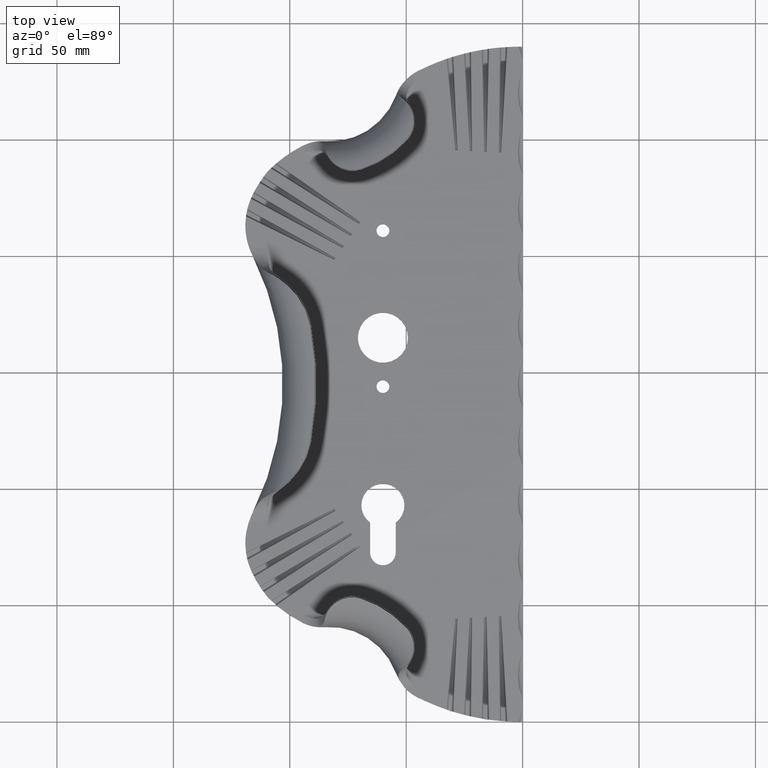
[diagram: clean part render]
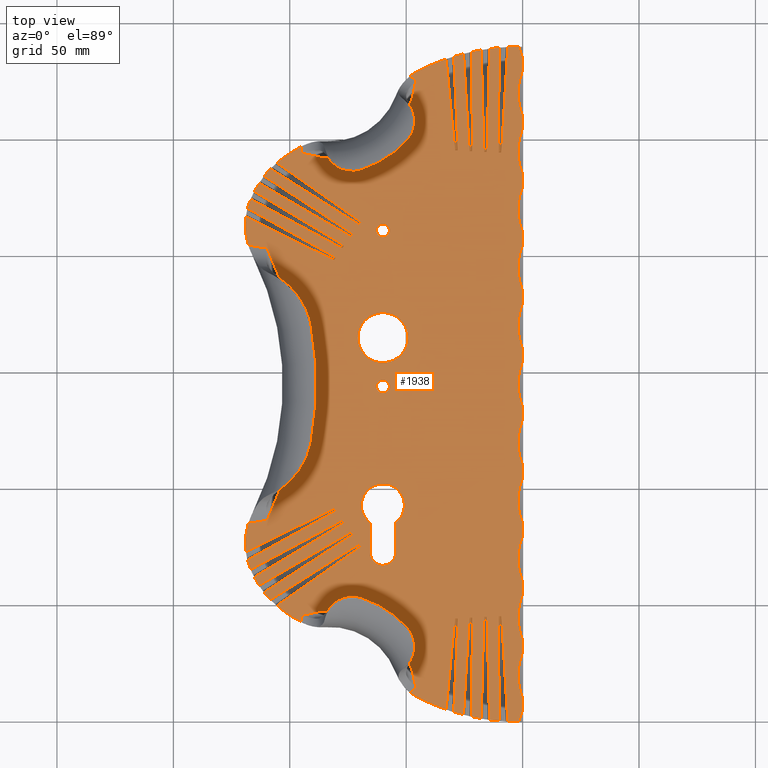
[diagram: same view with one face highlighted and labeled with its STEP entity id]
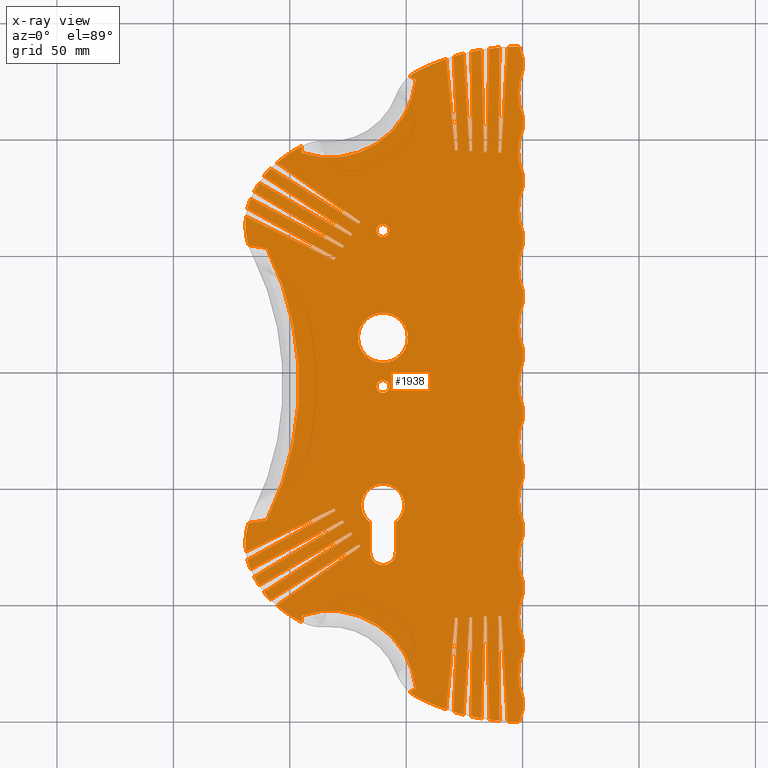
[diagram: x-ray of the same camera — body ghosted, the highlighted face saturated]
A machine part, top view. The second image highlights one B-rep face of the part: STEP entity #1938.
The next image is the same camera in x-ray: the body ghosted, the highlighted face saturated — about 0% of this face is hidden behind the body in this view.
In plain terms, the highlighted planar face has unit normal (0, 0, 1).
Its self-contained STEP definition (entity closure, byte-faithful):
#5 = EDGE_CURVE ( 'NONE', #10139, #12937, #3052, .T. ) ;
#33 = VECTOR ( 'NONE', #1903, 1000.000000000000100 ) ;
#66 = CARTESIAN_POINT ( 'NONE',  ( 0.0000000000000000000, 0.0000000000000000000, 4.000000000000000000 ) ) ;
#134 = DIRECTION ( 'NONE',  ( 0.0000000000000000000, 0.0000000000000000000, 1.000000000000000000 ) ) ;
#141 = VERTEX_POINT ( 'NONE', #263 ) ;
#166 = EDGE_LOOP ( 'NONE', ( #13331, #1907, #1408, #4705 ) ) ;
#180 = CARTESIAN_POINT ( 'NONE',  ( -9.991632002245099300, 289.6168244133695600, 4.000000000000000000 ) ) ;
#189 = EDGE_CURVE ( 'NONE', #5837, #3848, #5084, .T. ) ;
#208 = ORIENTED_EDGE ( 'NONE', *, *, #18535, .T. ) ;
#210 = VERTEX_POINT ( 'NONE', #17794 ) ;
#232 = LINE ( 'NONE', #14761, #15217 ) ;
#246 = VECTOR ( 'NONE', #15809, 1000.000000000000000 ) ;
#252 = CARTESIAN_POINT ( 'NONE',  ( -27.74130169652832500, 245.3083318347132100, 4.000000000000000000 ) ) ;
#263 = CARTESIAN_POINT ( 'NONE',  ( -10.46681594658298300, 45.56897868920784600, 4.000000000000000000 ) ) ;
#318 = ORIENTED_EDGE ( 'NONE', *, *, #13367, .T. ) ;
#351 = EDGE_CURVE ( 'NONE', #9759, #12114, #5989, .T. ) ;
#396 = CARTESIAN_POINT ( 'NONE',  ( -73.76915092521929300, 208.4787570700990500, 4.000000000000000000 ) ) ;
#449 = VECTOR ( 'NONE', #2548, 1000.000000000000100 ) ;
#450 = VECTOR ( 'NONE', #3518, 1000.000000000000200 ) ;
#451 = CARTESIAN_POINT ( 'NONE',  ( -95.08166273571575300, 247.0859962695537300, 4.000000000000000000 ) ) ;
#458 = EDGE_CURVE ( 'NONE', #14509, #1385, #10772, .T. ) ;
#469 = EDGE_CURVE ( 'NONE', #15802, #9256, #8502, .T. ) ;
#498 = EDGE_CURVE ( 'NONE', #17619, #16184, #8029, .T. ) ;
#509 = ORIENTED_EDGE ( 'NONE', *, *, #7723, .T. ) ;
#534 = DIRECTION ( 'NONE',  ( -1.000000000000000000, 0.0000000000000000000, 0.0000000000000000000 ) ) ;
#542 = VERTEX_POINT ( 'NONE', #9683 ) ;
#577 = AXIS2_PLACEMENT_3D ( 'NONE', #12656, #2522, #2652 ) ;
#582 = DIRECTION ( 'NONE',  ( 0.5538203919517713500, -0.8326361591105603300, 0.0000000000000000000 ) ) ;
#588 = ORIENTED_EDGE ( 'NONE', *, *, #15927, .T. ) ;
#609 = DIRECTION ( 'NONE',  ( 1.000000000000000000, 0.0000000000000000000, 0.0000000000000000000 ) ) ;
#649 = VERTEX_POINT ( 'NONE', #9935 ) ;
#708 = VECTOR ( 'NONE', #2007, 1000.000000000000100 ) ;
#718 = DIRECTION ( 'NONE',  ( -1.000000000000000000, 0.0000000000000000000, 0.0000000000000000000 ) ) ;
#748 = CARTESIAN_POINT ( 'NONE',  ( -69.51640901986941400, 75.18249468637417000, 4.000000000000000000 ) ) ;
#760 = ORIENTED_EDGE ( 'NONE', *, *, #13408, .T. ) ;
#817 = EDGE_CURVE ( 'NONE', #15882, #9537, #6652, .T. ) ;
#859 = LINE ( 'NONE', #5945, #6599 ) ;
#928 = EDGE_CURVE ( 'NONE', #7716, #12045, #8063, .T. ) ;
#938 = EDGE_CURVE ( 'NONE', #16184, #9199, #2820, .T. ) ;
#939 = CIRCLE ( 'NONE', #17306, 54.63681975765323500 ) ;
#941 = DIRECTION ( 'NONE',  ( 0.0000000000000000000, 1.000000000000000000, 0.0000000000000000000 ) ) ;
#961 = CARTESIAN_POINT ( 'NONE',  ( -69.61449242181186000, 214.8862529350221300, 4.000000000000000000 ) ) ;
#964 = DIRECTION ( 'NONE',  ( 0.09402582042187426800, 0.9955697590294682000, -0.0000000000000000000 ) ) ;
#965 = EDGE_CURVE ( 'NONE', #15421, #6715, #13454, .T. ) ;
#968 = CARTESIAN_POINT ( 'NONE',  ( -1.169444724413909500, 192.9641236476962500, 4.000000000000000000 ) ) ;
#971 = AXIS2_PLACEMENT_3D ( 'NONE', #7326, #3076, #13188 ) ;
#986 = VERTEX_POINT ( 'NONE', #10351 ) ;
#994 = CARTESIAN_POINT ( 'NONE',  ( -118.8320234962415000, 216.9346203500023500, 4.000000000000000000 ) ) ;
#1000 = DIRECTION ( 'NONE',  ( 0.0000000000000000000, 0.0000000000000000000, 1.000000000000000000 ) ) ;
#1033 = ORIENTED_EDGE ( 'NONE', *, *, #458, .T. ) ;
#1071 = VERTEX_POINT ( 'NONE', #16387 ) ;
#1078 = ORIENTED_EDGE ( 'NONE', *, *, #5, .T. ) ;
#1084 = CARTESIAN_POINT ( 'NONE',  ( -21.96452932521783200, 287.7455867926859100, 4.000000000000000000 ) ) ;
#1132 = LINE ( 'NONE', #11178, #5058 ) ;
#1137 = VECTOR ( 'NONE', #18411, 1000.000000000000000 ) ;
#1139 = VECTOR ( 'NONE', #11319, 1000.000000000000000 ) ;
#1258 = AXIS2_PLACEMENT_3D ( 'NONE', #7202, #12817, #2883 ) ;
#1263 = EDGE_CURVE ( 'NONE', #12179, #11908, #10569, .T. ) ;
#1266 = CARTESIAN_POINT ( 'NONE',  ( -76.52345814271998800, 204.5027443110410000, 4.000000000000000000 ) ) ;
#1267 = CARTESIAN_POINT ( 'NONE',  ( -9.059608417126774800, 244.5016951505451500, 4.000000000000000000 ) ) ;
#1310 = EDGE_CURVE ( 'NONE', #3576, #1462, #5790, .T. ) ;
#1318 = DIRECTION ( 'NONE',  ( 0.8810297215586724300, 0.4730609154540756400, -0.0000000000000000000 ) ) ;
#1331 = EDGE_CURVE ( 'NONE', #8468, #3403, #6022, .T. ) ;
#1385 = VERTEX_POINT ( 'NONE', #5219 ) ;
#1387 = CARTESIAN_POINT ( 'NONE',  ( 6.938893903907228400E-015, 135.0000000000001100, 4.000000000000000000 ) ) ;
#1393 = CARTESIAN_POINT ( 'NONE',  ( -115.0737917424882700, 204.5754788073987500, 4.000000000000000000 ) ) ;
#1408 = ORIENTED_EDGE ( 'NONE', *, *, #13964, .F. ) ;
#1410 = DIRECTION ( 'NONE',  ( -0.0000000000000000000, -0.0000000000000000000, -1.000000000000000000 ) ) ;
#1414 = VECTOR ( 'NONE', #10822, 1000.000000000000000 ) ;
#1432 = CARTESIAN_POINT ( 'NONE',  ( -77.29734961102104800, 203.3392443224188100, 4.000000000000000000 ) ) ;
#1462 = VERTEX_POINT ( 'NONE', #6326 ) ;
#1506 = CARTESIAN_POINT ( 'NONE',  ( -45.75215232231571600, 14.27311200906587800, 4.000000000000000000 ) ) ;
#1551 = DIRECTION ( 'NONE',  ( 1.000000000000000000, 0.0000000000000000000, 0.0000000000000000000 ) ) ;
#1565 = EDGE_CURVE ( 'NONE', #18364, #8468, #14601, .T. ) ;
#1577 = DIRECTION ( 'NONE',  ( -0.01051922080215219100, -0.9999446714662344500, 0.0000000000000000000 ) ) ;
#1581 = ORIENTED_EDGE ( 'NONE', *, *, #965, .T. ) ;
#1646 = LINE ( 'NONE', #6231, #8515 ) ;
#1696 = CARTESIAN_POINT ( 'NONE',  ( -80.10654227868971600, 199.3904412804713500, 4.000000000000000000 ) ) ;
#1746 = DIRECTION ( 'NONE',  ( -0.02438951328936701800, -0.9997025315770226000, 0.0000000000000000000 ) ) ;
#1752 = DIRECTION ( 'NONE',  ( 1.000000000000000000, 0.0000000000000000000, 0.0000000000000000000 ) ) ;
#1832 = CIRCLE ( 'NONE', #3765, 97.03587635230401500 ) ;
#1870 = DIRECTION ( 'NONE',  ( 0.0000000000000000000, 1.000000000000000000, 0.0000000000000000000 ) ) ;
#1901 = CARTESIAN_POINT ( 'NONE',  ( -65.50000190734877500, 72.75000000000001400, 4.000000000000000000 ) ) ;
#1903 = DIRECTION ( 'NONE',  ( 0.8639899896602744000, 0.5035089847925643400, -0.0000000000000000000 ) ) ;
#1907 = ORIENTED_EDGE ( 'NONE', *, *, #10962, .F. ) ;
#1931 = ORIENTED_EDGE ( 'NONE', *, *, #12281, .T. ) ;
#1935 = EDGE_CURVE ( 'NONE', #10949, #2873, #11237, .T. ) ;
#1938 = ADVANCED_FACE ( 'NONE', ( #16185, #18478, #5101, #14811, #16636 ), #6862, .T. ) ;
#1949 = VERTEX_POINT ( 'NONE', #2261 ) ;
#2007 = DIRECTION ( 'NONE',  ( -0.9993908270190958700, 0.03489949670249396800, -0.0000000000000000000 ) ) ;
#2021 = ORIENTED_EDGE ( 'NONE', *, *, #1565, .T. ) ;
#2051 = VECTOR ( 'NONE', #582, 1000.000000000000200 ) ;
#2071 = CARTESIAN_POINT ( 'NONE',  ( -12.10418208262395400, 224.9518443771916100, 4.000000000000000000 ) ) ;
#2135 = ORIENTED_EDGE ( 'NONE', *, *, #15498, .T. ) ;
#2172 = DIRECTION ( 'NONE',  ( 0.0000000000000000000, 0.0000000000000000000, 1.000000000000000000 ) ) ;
#2175 = EDGE_CURVE ( 'NONE', #16741, #3485, #11641, .T. ) ;
#2193 = CARTESIAN_POINT ( 'NONE',  ( -1.169444724413909500, 192.9641236476962500, 4.000000000000000000 ) ) ;
#2206 = AXIS2_PLACEMENT_3D ( 'NONE', #968, #14050, #13929 ) ;
#2261 = CARTESIAN_POINT ( 'NONE',  ( 5.275533547694347400E-015, 185.0000000000001100, 4.000000000000000000 ) ) ;
#2264 = VECTOR ( 'NONE', #14858, 1000.000000000000000 ) ;
#2303 = VERTEX_POINT ( 'NONE', #3422 ) ;
#2335 = ORIENTED_EDGE ( 'NONE', *, *, #6923, .T. ) ;
#2397 = CARTESIAN_POINT ( 'NONE',  ( -1.169444724413909500, 97.03587635230401500, 4.000000000000000000 ) ) ;
#2398 = EDGE_CURVE ( 'NONE', #4699, #12109, #12090, .T. ) ;
#2429 = CARTESIAN_POINT ( 'NONE',  ( -70.12774380726294500, 91.51939441237081500, 4.000000000000000000 ) ) ;
#2446 = CARTESIAN_POINT ( 'NONE',  ( 24.00000000000005700, 295.0000000000001700, 4.000000000000000000 ) ) ;
#2457 = DIRECTION ( 'NONE',  ( 0.0000000000000000000, 0.0000000000000000000, 1.000000000000000000 ) ) ;
#2461 = CARTESIAN_POINT ( 'NONE',  ( 0.0000000000000000000, 0.0000000000000000000, 4.000000000000000000 ) ) ;
#2463 = DIRECTION ( 'NONE',  ( 0.5538203919517721300, -0.8326361591105596600, 0.0000000000000000000 ) ) ;
#2483 = VERTEX_POINT ( 'NONE', #14102 ) ;
#2522 = DIRECTION ( 'NONE',  ( 0.0000000000000000000, 0.0000000000000000000, 1.000000000000000000 ) ) ;
#2535 = EDGE_CURVE ( 'NONE', #3318, #12607, #7351, .T. ) ;
#2548 = DIRECTION ( 'NONE',  ( 0.04542105567078902300, -0.9989679312679417000, -0.0000000000000000000 ) ) ;
#2560 = VECTOR ( 'NONE', #10545, 999.9999999999998900 ) ;
#2561 = CARTESIAN_POINT ( 'NONE',  ( 0.0000000000000000000, 0.0000000000000000000, 4.000000000000000000 ) ) ;
#2594 = ORIENTED_EDGE ( 'NONE', *, *, #12640, .T. ) ;
#2597 = CARTESIAN_POINT ( 'NONE',  ( -79.73878001475736700, 43.14994839974298200, 4.000000000000000000 ) ) ;
#2640 = VERTEX_POINT ( 'NONE', #14947 ) ;
#2642 = ORIENTED_EDGE ( 'NONE', *, *, #11105, .T. ) ;
#2644 = CARTESIAN_POINT ( 'NONE',  ( -44.99999999999998600, 279.5368891325380800, 4.000000000000000000 ) ) ;
#2652 = DIRECTION ( 'NONE',  ( -1.000000000000000000, 0.0000000000000000000, 0.0000000000000000000 ) ) ;
#2705 = AXIS2_PLACEMENT_3D ( 'NONE', #2193, #18142, #17948 ) ;
#2719 = LINE ( 'NONE', #2071, #10693 ) ;
#2805 = ORIENTED_EDGE ( 'NONE', *, *, #18249, .T. ) ;
#2820 = LINE ( 'NONE', #16987, #12107 ) ;
#2853 = ORIENTED_EDGE ( 'NONE', *, *, #1310, .T. ) ;
#2855 = VERTEX_POINT ( 'NONE', #15337 ) ;
#2873 = VERTEX_POINT ( 'NONE', #13746 ) ;
#2883 = DIRECTION ( 'NONE',  ( -1.000000000000000000, 0.0000000000000000000, 0.0000000000000000000 ) ) ;
#2884 = CARTESIAN_POINT ( 'NONE',  ( -105.5534973767548600, 49.92374491312729400, 4.000000000000000000 ) ) ;
#2899 = CARTESIAN_POINT ( 'NONE',  ( -82.78054850216793200, 10.48737512970854300, 4.000000000000000000 ) ) ;
#2901 = CARTESIAN_POINT ( 'NONE',  ( -32.85171716190436100, 284.7284350041233600, 4.000000000000000000 ) ) ;
#2940 = EDGE_CURVE ( 'NONE', #17115, #15882, #11652, .T. ) ;
#2953 = LINE ( 'NONE', #14936, #17910 ) ;
#2958 = EDGE_CURVE ( 'NONE', #3303, #11997, #11433, .T. ) ;
#2964 = AXIS2_PLACEMENT_3D ( 'NONE', #14230, #134, #3033 ) ;
#2989 = VECTOR ( 'NONE', #1746, 1000.000000000000000 ) ;
#2994 = VERTEX_POINT ( 'NONE', #15530 ) ;
#3031 = VECTOR ( 'NONE', #15164, 1000.000000000000200 ) ;
#3033 = DIRECTION ( 'NONE',  ( 1.000000000000000000, 0.0000000000000000000, 0.0000000000000000000 ) ) ;
#3052 = CIRCLE ( 'NONE', #12175, 37.22141758949842200 ) ;
#3076 = DIRECTION ( 'NONE',  ( 0.0000000000000000000, 0.0000000000000000000, 1.000000000000000000 ) ) ;
#3102 = CARTESIAN_POINT ( 'NONE',  ( -16.68924960636749700, 45.32120930275584700, 4.000000000000000000 ) ) ;
#3113 = CARTESIAN_POINT ( 'NONE',  ( -105.5534973767548500, 240.0762550868730000, 4.000000000000000000 ) ) ;
#3122 = EDGE_CURVE ( 'NONE', #18233, #12179, #15234, .T. ) ;
#3154 = CARTESIAN_POINT ( 'NONE',  ( -72.99376593259950100, 80.35549751592032000, 4.000000000000000000 ) ) ;
#3175 = DIRECTION ( 'NONE',  ( -0.0000000000000000000, -0.0000000000000000000, -1.000000000000000000 ) ) ;
#3181 = DIRECTION ( 'NONE',  ( 0.0000000000000000000, 0.0000000000000000000, 1.000000000000000000 ) ) ;
#3194 = CARTESIAN_POINT ( 'NONE',  ( -47.51834905537672400, 13.16149388062420800, 4.000000000000000000 ) ) ;
#3199 = EDGE_CURVE ( 'NONE', #3885, #6304, #232, .T. ) ;
#3240 = LINE ( 'NONE', #9345, #13862 ) ;
#3303 = VERTEX_POINT ( 'NONE', #16473 ) ;
#3315 = DIRECTION ( 'NONE',  ( -0.9993908270190958700, 0.03489949670249391200, -0.0000000000000000000 ) ) ;
#3318 = VERTEX_POINT ( 'NONE', #3507 ) ;
#3340 = ORIENTED_EDGE ( 'NONE', *, *, #17959, .T. ) ;
#3390 = ORIENTED_EDGE ( 'NONE', *, *, #11894, .T. ) ;
#3403 = VERTEX_POINT ( 'NONE', #1084 ) ;
#3417 = LINE ( 'NONE', #3878, #4133 ) ;
#3422 = CARTESIAN_POINT ( 'NONE',  ( -108.2723644838816200, 237.5979928555332500, 4.000000000000000000 ) ) ;
#3431 = DIRECTION ( 'NONE',  ( -0.8639899896602744000, 0.5035089847925643400, -0.0000000000000000000 ) ) ;
#3432 = EDGE_CURVE ( 'NONE', #18080, #5581, #15687, .T. ) ;
#3433 = CARTESIAN_POINT ( 'NONE',  ( -60.00000190734877500, 72.75000000000001400, 4.000000000000000000 ) ) ;
#3441 = EDGE_CURVE ( 'NONE', #18300, #4699, #9578, .T. ) ;
#3474 = CARTESIAN_POINT ( 'NONE',  ( -66.79350045045883600, 218.9662344237824800, 4.000000000000000000 ) ) ;
#3483 = CARTESIAN_POINT ( 'NONE',  ( -80.10654227868973000, 90.60955871952887700, 4.000000000000000000 ) ) ;
#3485 = VERTEX_POINT ( 'NONE', #6984 ) ;
#3494 = VECTOR ( 'NONE', #11532, 1000.000000000000000 ) ;
#3507 = CARTESIAN_POINT ( 'NONE',  ( -94.79087129459343000, 45.71784594395632700, 4.000000000000000000 ) ) ;
#3509 = CARTESIAN_POINT ( 'NONE',  ( 3.659392783668341200E-015, 180.0000000000001400, 4.000000000000000000 ) ) ;
#3518 = DIRECTION ( 'NONE',  ( -0.8458952558374546200, 0.5333490565771043000, -0.0000000000000000000 ) ) ;
#3576 = VERTEX_POINT ( 'NONE', #18115 ) ;
#3596 = EDGE_LOOP ( 'NONE', ( #14697 ) ) ;
#3609 = CARTESIAN_POINT ( 'NONE',  ( -29.13330675070155000, 44.64305827765888100, 4.000000000000000000 ) ) ;
#3615 = VERTEX_POINT ( 'NONE', #9497 ) ;
#3642 = CARTESIAN_POINT ( 'NONE',  ( -95.08166273571573900, 42.91400373044652400, 4.000000000000000000 ) ) ;
#3679 = VECTOR ( 'NONE', #5849, 1000.000000000000000 ) ;
#3686 = VERTEX_POINT ( 'NONE', #9928 ) ;
#3761 = DIRECTION ( 'NONE',  ( -0.0000000000000000000, -0.0000000000000000000, -1.000000000000000000 ) ) ;
#3765 = AXIS2_PLACEMENT_3D ( 'NONE', #16341, #3181, #7675 ) ;
#3772 = VERTEX_POINT ( 'NONE', #17656 ) ;
#3815 = CARTESIAN_POINT ( 'NONE',  ( 3.612173191481467300E-015, 235.0000000000001100, 4.000000000000000000 ) ) ;
#3848 = VERTEX_POINT ( 'NONE', #10349 ) ;
#3860 = CARTESIAN_POINT ( 'NONE',  ( -12.18146516104037900, 230.1538332512383500, 4.000000000000000000 ) ) ;
#3867 = VERTEX_POINT ( 'NONE', #10531 ) ;
#3869 = DIRECTION ( 'NONE',  ( -0.02438121765351120700, 0.9997027339293076400, -0.0000000000000000000 ) ) ;
#3878 = CARTESIAN_POINT ( 'NONE',  ( -11.56342027686625700, 113.3783795728884800, 4.000000000000000000 ) ) ;
#3885 = VERTEX_POINT ( 'NONE', #9192 ) ;
#3898 = CARTESIAN_POINT ( 'NONE',  ( -9.991828833305135000, 0.4018924848528254700, 4.000000000000000000 ) ) ;
#3902 = CARTESIAN_POINT ( 'NONE',  ( 4.491072961774781700E-015, 155.0000000000001400, 4.000000000000000000 ) ) ;
#3976 = VECTOR ( 'NONE', #8953, 1000.000000000000000 ) ;
#3982 = CARTESIAN_POINT ( 'NONE',  ( -57.25000190734876800, 211.0000000000000300, 4.000000000000000000 ) ) ;
#3987 = ORIENTED_EDGE ( 'NONE', *, *, #12611, .T. ) ;
#3993 = VERTEX_POINT ( 'NONE', #14076 ) ;
#4002 = CARTESIAN_POINT ( 'NONE',  ( -14.20461081058219800, 0.8795154365245500000, 4.000000000000000000 ) ) ;
#4030 = AXIS2_PLACEMENT_3D ( 'NONE', #4917, #6368, #18030 ) ;
#4033 = EDGE_CURVE ( 'NONE', #17424, #8742, #9822, .T. ) ;
#4045 = CARTESIAN_POINT ( 'NONE',  ( -85.80496043187416400, 247.0618872882986900, 4.000000000000000000 ) ) ;
#4060 = EDGE_CURVE ( 'NONE', #12607, #3615, #5350, .T. ) ;
#4087 = DIRECTION ( 'NONE',  ( 1.000000000000000000, 0.0000000000000000000, 0.0000000000000000000 ) ) ;
#4133 = VECTOR ( 'NONE', #7013, 1000.000000000000200 ) ;
#4143 = VECTOR ( 'NONE', #6476, 1000.000000000000000 ) ;
#4152 = ORIENTED_EDGE ( 'NONE', *, *, #12300, .T. ) ;
#4187 = CARTESIAN_POINT ( 'NONE',  ( -90.06174921599674100, 76.73162878854353200, 4.000000000000000000 ) ) ;
#4192 = EDGE_CURVE ( 'NONE', #1071, #16741, #7061, .T. ) ;
#4195 = AXIS2_PLACEMENT_3D ( 'NONE', #7500, #6354, #13419 ) ;
#4251 = EDGE_CURVE ( 'NONE', #13578, #986, #13610, .T. ) ;
#4276 = EDGE_CURVE ( 'NONE', #8742, #2855, #6848, .T. ) ;
#4292 = AXIS2_PLACEMENT_3D ( 'NONE', #9045, #14935, #1752 ) ;
#4293 = ORIENTED_EDGE ( 'NONE', *, *, #6477, .T. ) ;
#4309 = CARTESIAN_POINT ( 'NONE',  ( 0.0000000000000000000, 0.0000000000000000000, 4.000000000000000000 ) ) ;
#4313 = CARTESIAN_POINT ( 'NONE',  ( -112.4123611719360400, 204.1629695311390300, 4.000000000000000000 ) ) ;
#4321 = CARTESIAN_POINT ( 'NONE',  ( -54.50000190734878200, 72.75000000000001400, 4.000000000000000000 ) ) ;
#4358 = CARTESIAN_POINT ( 'NONE',  ( -80.87793297375996800, 198.2307010562925600, 4.000000000000000000 ) ) ;
#4396 = VECTOR ( 'NONE', #17263, 1000.000000000000100 ) ;
#4435 = CARTESIAN_POINT ( 'NONE',  ( -95.08166273571573900, 42.91400373044652400, 4.000000000000000000 ) ) ;
#4437 = CARTESIAN_POINT ( 'NONE',  ( -32.84748318503920900, 284.6836045595874800, 4.000000000000000000 ) ) ;
#4529 = CARTESIAN_POINT ( 'NONE',  ( -112.4123611719359700, 85.83703046886118700, 4.000000000000000000 ) ) ;
#4533 = CARTESIAN_POINT ( 'NONE',  ( 6.361319040485467700E-016, 80.00000000000012800, 4.000000000000000000 ) ) ;
#4534 = AXIS2_PLACEMENT_3D ( 'NONE', #2397, #2457, #718 ) ;
#4537 = VERTEX_POINT ( 'NONE', #16736 ) ;
#4547 = CARTESIAN_POINT ( 'NONE',  ( -94.79087129459343000, 45.71784594395632700, 4.000000000000000000 ) ) ;
#4562 = VERTEX_POINT ( 'NONE', #7900 ) ;
#4581 = LINE ( 'NONE', #8602, #14032 ) ;
#4606 = CIRCLE ( 'NONE', #6194, 26.00000000000005000 ) ;
#4632 = LINE ( 'NONE', #11455, #8492 ) ;
#4678 = EDGE_CURVE ( 'NONE', #141, #18300, #5929, .T. ) ;
#4696 = CARTESIAN_POINT ( 'NONE',  ( -60.00000190734876100, 93.00000000000001400, 4.000000000000000000 ) ) ;
#4699 = VERTEX_POINT ( 'NONE', #5418 ) ;
#4705 = ORIENTED_EDGE ( 'NONE', *, *, #4870, .F. ) ;
#4723 = DIRECTION ( 'NONE',  ( 0.0000000000000000000, 1.000000000000000000, 0.0000000000000000000 ) ) ;
#4757 = ORIENTED_EDGE ( 'NONE', *, *, #12031, .T. ) ;
#4774 = VECTOR ( 'NONE', #14547, 1000.000000000000100 ) ;
#4785 = VERTEX_POINT ( 'NONE', #4358 ) ;
#4792 = CIRCLE ( 'NONE', #577, 97.03587635230401500 ) ;
#4800 = VECTOR ( 'NONE', #9932, 1000.000000000000100 ) ;
#4812 = VERTEX_POINT ( 'NONE', #3982 ) ;
#4830 = VECTOR ( 'NONE', #13821, 1000.000000000000200 ) ;
#4837 = VECTOR ( 'NONE', #5663, 1000.000000000000100 ) ;
#4870 = EDGE_CURVE ( 'NONE', #14244, #17590, #13154, .T. ) ;
#4913 = CARTESIAN_POINT ( 'NONE',  ( -85.79540127714761900, 247.3356256642185800, 4.000000000000000000 ) ) ;
#4917 = CARTESIAN_POINT ( 'NONE',  ( -1.169444724413909500, 192.9641236476962500, 4.000000000000000000 ) ) ;
#4925 = CARTESIAN_POINT ( 'NONE',  ( -27.74130169652831800, 44.69166816528700500, 4.000000000000000000 ) ) ;
#4952 = AXIS2_PLACEMENT_3D ( 'NONE', #5704, #5527, #8660 ) ;
#4991 = CARTESIAN_POINT ( 'NONE',  ( -36.22673782837782100, 27.79178862993492100, 4.000000000000000000 ) ) ;
#5036 = LINE ( 'NONE', #7257, #11389 ) ;
#5058 = VECTOR ( 'NONE', #14172, 1000.000000000000000 ) ;
#5074 = LINE ( 'NONE', #2561, #7792 ) ;
#5084 = LINE ( 'NONE', #7602, #2560 ) ;
#5086 = VERTEX_POINT ( 'NONE', #748 ) ;
#5088 = CIRCLE ( 'NONE', #15888, 29.00293200534041900 ) ;
#5090 = DIRECTION ( 'NONE',  ( 0.9993908270190958700, 0.03489949670249396800, -0.0000000000000000000 ) ) ;
#5101 = FACE_BOUND ( 'NONE', #7714, .T. ) ;
#5104 = CARTESIAN_POINT ( 'NONE',  ( -32.84748318503923100, 5.316395440412804900, 4.000000000000000000 ) ) ;
#5129 = DIRECTION ( 'NONE',  ( -0.0000000000000000000, -0.0000000000000000000, -1.000000000000000000 ) ) ;
#5151 = CARTESIAN_POINT ( 'NONE',  ( -79.72922086003082100, 42.87621002382307700, 4.000000000000000000 ) ) ;
#5184 = VERTEX_POINT ( 'NONE', #5403 ) ;
#5191 = CARTESIAN_POINT ( 'NONE',  ( -146.9701046305706000, 191.6295388172960900, 4.000000000000000000 ) ) ;
#5203 = CARTESIAN_POINT ( 'NONE',  ( -108.2723644838816500, 52.40200714446702800, 4.000000000000000000 ) ) ;
#5219 = CARTESIAN_POINT ( 'NONE',  ( -109.6493917176414600, 53.79378746326578700, 4.000000000000000000 ) ) ;
#5247 = CIRCLE ( 'NONE', #17868, 26.00000000000005300 ) ;
#5250 = ORIENTED_EDGE ( 'NONE', *, *, #3199, .T. ) ;
#5268 = VERTEX_POINT ( 'NONE', #14247 ) ;
#5271 = DIRECTION ( 'NONE',  ( 0.0000000000000000000, 0.0000000000000000000, 1.000000000000000000 ) ) ;
#5327 = ORIENTED_EDGE ( 'NONE', *, *, #3441, .T. ) ;
#5330 = LINE ( 'NONE', #180, #17778 ) ;
#5350 = B_SPLINE_CURVE_WITH_KNOTS ( 'NONE', 3,
 ( #1506, #11463, #3194, #13305 ),
 .UNSPECIFIED., .F., .F.,
 ( 4, 4 ),
 ( 7.757919228897728500E-018, 0.003125920697779485100 ),
 .UNSPECIFIED. ) ;
#5351 = ORIENTED_EDGE ( 'NONE', *, *, #12133, .T. ) ;
#5355 = CARTESIAN_POINT ( 'NONE',  ( -86.33225113058634300, 231.9622572862478500, 4.000000000000000000 ) ) ;
#5361 = EDGE_CURVE ( 'NONE', #1949, #14431, #9539, .T. ) ;
#5362 = CARTESIAN_POINT ( 'NONE',  ( 1.996032427455460700E-015, 230.0000000000001400, 4.000000000000000000 ) ) ;
#5403 = CARTESIAN_POINT ( 'NONE',  ( -70.29229070263583900, 213.6510131554263400, 4.000000000000000000 ) ) ;
#5410 = DIRECTION ( 'NONE',  ( 1.000000000000000000, 0.0000000000000000000, 0.0000000000000000000 ) ) ;
#5418 = CARTESIAN_POINT ( 'NONE',  ( -6.366782642702380800, 0.1392872584522475400, 4.000000000000000000 ) ) ;
#5439 = CARTESIAN_POINT ( 'NONE',  ( -66.76813947790610400, 218.9493658028299000, 4.000000000000000000 ) ) ;
#5466 = ORIENTED_EDGE ( 'NONE', *, *, #8699, .T. ) ;
#5512 = VECTOR ( 'NONE', #15101, 1000.000000000000200 ) ;
#5527 = DIRECTION ( 'NONE',  ( 0.0000000000000000000, 0.0000000000000000000, 1.000000000000000000 ) ) ;
#5545 = VECTOR ( 'NONE', #3869, 1000.000000000000100 ) ;
#5581 = VERTEX_POINT ( 'NONE', #5104 ) ;
#5585 = AXIS2_PLACEMENT_3D ( 'NONE', #8249, #17031, #6765 ) ;
#5590 = CARTESIAN_POINT ( 'NONE',  ( -20.36190948909413800, 235.8787141619591200, 4.000000000000000000 ) ) ;
#5601 = EDGE_CURVE ( 'NONE', #5581, #7716, #2719, .T. ) ;
#5604 = CARTESIAN_POINT ( 'NONE',  ( -7.104941773452888600, 118.9273061025058400, 4.000000000000000000 ) ) ;
#5613 = ORIENTED_EDGE ( 'NONE', *, *, #9372, .T. ) ;
#5663 = DIRECTION ( 'NONE',  ( 0.02438121765351120700, 0.9997027339293076400, -0.0000000000000000000 ) ) ;
#5669 = LINE ( 'NONE', #66, #12908 ) ;
#5699 = CARTESIAN_POINT ( 'NONE',  ( -113.1171833524299600, 231.4096799952593000, 4.000000000000000000 ) ) ;
#5704 = CARTESIAN_POINT ( 'NONE',  ( -1.169444724413909500, 97.03587635230401500, 4.000000000000000000 ) ) ;
#5745 = ORIENTED_EDGE ( 'NONE', *, *, #189, .T. ) ;
#5774 = LINE ( 'NONE', #1901, #1414 ) ;
#5781 = DIRECTION ( 'NONE',  ( 0.0000000000000000000, 0.0000000000000000000, 1.000000000000000000 ) ) ;
#5790 = CIRCLE ( 'NONE', #2705, 97.03587635230401500 ) ;
#5811 = CARTESIAN_POINT ( 'NONE',  ( -118.8887801131371200, 216.9625902253751000, 4.000000000000000000 ) ) ;
#5816 = AXIS2_PLACEMENT_3D ( 'NONE', #17981, #6272, #6140 ) ;
#5837 = VERTEX_POINT ( 'NONE', #3483 ) ;
#5849 = DIRECTION ( 'NONE',  ( 0.0000000000000000000, 1.000000000000000000, 0.0000000000000000000 ) ) ;
#5892 = CARTESIAN_POINT ( 'NONE',  ( -118.8320234962415000, 73.06537964999788000, 4.000000000000000000 ) ) ;
#5893 = VERTEX_POINT ( 'NONE', #3815 ) ;
#5894 = AXIS2_PLACEMENT_3D ( 'NONE', #5908, #11863, #16161 ) ;
#5899 = CARTESIAN_POINT ( 'NONE',  ( -90.06174921599674100, 213.2683712114567200, 4.000000000000000000 ) ) ;
#5908 = CARTESIAN_POINT ( 'NONE',  ( 24.00000000000005700, 70.00000000000011400, 4.000000000000000000 ) ) ;
#5914 = VECTOR ( 'NONE', #18743, 1000.000000000000100 ) ;
#5929 = LINE ( 'NONE', #2597, #4800 ) ;
#5945 = CARTESIAN_POINT ( 'NONE',  ( -29.67865974529293300, 117.0004943479186300, 4.000000000000000000 ) ) ;
#5955 = LINE ( 'NONE', #15185, #10291 ) ;
#5989 = LINE ( 'NONE', #7579, #3976 ) ;
#5992 = VECTOR ( 'NONE', #17397, 1000.000000000000000 ) ;
#6014 = AXIS2_PLACEMENT_3D ( 'NONE', #16620, #9295, #534 ) ;
#6022 = CIRCLE ( 'NONE', #2206, 97.03587635230401500 ) ;
#6100 = ORIENTED_EDGE ( 'NONE', *, *, #4192, .T. ) ;
#6140 = DIRECTION ( 'NONE',  ( 1.000000000000000000, 0.0000000000000000000, 0.0000000000000000000 ) ) ;
#6158 = LINE ( 'NONE', #3474, #2264 ) ;
#6161 = CARTESIAN_POINT ( 'NONE',  ( -70.12774380726294500, 91.51939441237081500, 4.000000000000000000 ) ) ;
#6171 = CARTESIAN_POINT ( 'NONE',  ( 1.164352249349020600E-015, 255.0000000000001100, 4.000000000000000000 ) ) ;
#6188 = DIRECTION ( 'NONE',  ( 0.0000000000000000000, 1.000000000000000000, 0.0000000000000000000 ) ) ;
#6194 = AXIS2_PLACEMENT_3D ( 'NONE', #16974, #11291, #18571 ) ;
#6196 = LINE ( 'NONE', #5439, #11649 ) ;
#6216 = AXIS2_PLACEMENT_3D ( 'NONE', #15444, #17054, #6915 ) ;
#6224 = CARTESIAN_POINT ( 'NONE',  ( -54.50000190734878200, 72.75000000000001400, 4.000000000000000000 ) ) ;
#6231 = CARTESIAN_POINT ( 'NONE',  ( 0.0000000000000000000, 0.0000000000000000000, 4.000000000000000000 ) ) ;
#6253 = CARTESIAN_POINT ( 'NONE',  ( 24.00000000000006000, 145.0000000000001400, 4.000000000000000000 ) ) ;
#6272 = DIRECTION ( 'NONE',  ( -0.0000000000000000000, -0.0000000000000000000, -1.000000000000000000 ) ) ;
#6288 = VERTEX_POINT ( 'NONE', #396 ) ;
#6301 = CARTESIAN_POINT ( 'NONE',  ( 4.368933198756405700E-015, 85.00000000000011400, 4.000000000000000000 ) ) ;
#6304 = VERTEX_POINT ( 'NONE', #16288 ) ;
#6326 = CARTESIAN_POINT ( 'NONE',  ( -14.20461081058218700, 289.1204845634757100, 4.000000000000000000 ) ) ;
#6354 = DIRECTION ( 'NONE',  ( 0.0000000000000000000, 0.0000000000000000000, 1.000000000000000000 ) ) ;
#6368 = DIRECTION ( 'NONE',  ( 0.0000000000000000000, 0.0000000000000000000, 1.000000000000000000 ) ) ;
#6390 = CARTESIAN_POINT ( 'NONE',  ( -45.75215232231571600, 14.27311200906587800, 4.000000000000000000 ) ) ;
#6395 = ORIENTED_EDGE ( 'NONE', *, *, #817, .T. ) ;
#6410 = CIRCLE ( 'NONE', #5894, 26.00000000000005000 ) ;
#6441 = CARTESIAN_POINT ( 'NONE',  ( -90.06174921599674100, 213.2683712114567200, 4.000000000000000000 ) ) ;
#6469 = EDGE_CURVE ( 'NONE', #16094, #8129, #8498, .T. ) ;
#6476 = DIRECTION ( 'NONE',  ( -0.01051564071842498600, 0.9999447091215999400, -0.0000000000000000000 ) ) ;
#6477 = EDGE_CURVE ( 'NONE', #8129, #7214, #11690, .T. ) ;
#6484 = CARTESIAN_POINT ( 'NONE',  ( 5.653913551331817100E-015, 110.0000000000001300, 4.000000000000000000 ) ) ;
#6501 = AXIS2_PLACEMENT_3D ( 'NONE', #5355, #14123, #18281 ) ;
#6539 = CARTESIAN_POINT ( 'NONE',  ( -48.45454446029190600, 277.2990677771799100, 4.000000000000000000 ) ) ;
#6576 = VERTEX_POINT ( 'NONE', #17310 ) ;
#6593 = DIRECTION ( 'NONE',  ( 0.05924249100438330800, 0.9982436211965470800, -0.0000000000000000000 ) ) ;
#6595 = EDGE_CURVE ( 'NONE', #4537, #7074, #4581, .T. ) ;
#6599 = VECTOR ( 'NONE', #14608, 1000.000000000000000 ) ;
#6612 = VECTOR ( 'NONE', #17722, 1000.000000000000100 ) ;
#6623 = VERTEX_POINT ( 'NONE', #14373 ) ;
#6635 = AXIS2_PLACEMENT_3D ( 'NONE', #12868, #7002, #12679 ) ;
#6652 = LINE ( 'NONE', #18260, #10981 ) ;
#6655 = DIRECTION ( 'NONE',  ( 1.000000000000000000, 0.0000000000000000000, 0.0000000000000000000 ) ) ;
#6680 = VECTOR ( 'NONE', #5090, 1000.000000000000100 ) ;
#6713 = DIRECTION ( 'NONE',  ( 1.000000000000000000, 0.0000000000000000000, 0.0000000000000000000 ) ) ;
#6715 = VERTEX_POINT ( 'NONE', #3113 ) ;
#6761 = DIRECTION ( 'NONE',  ( -0.0000000000000000000, -0.0000000000000000000, -1.000000000000000000 ) ) ;
#6765 = DIRECTION ( 'NONE',  ( -1.000000000000000000, 0.0000000000000000000, 0.0000000000000000000 ) ) ;
#6773 = EDGE_CURVE ( 'NONE', #2483, #4537, #5088, .T. ) ;
#6784 = ORIENTED_EDGE ( 'NONE', *, *, #15571, .T. ) ;
#6791 = AXIS2_PLACEMENT_3D ( 'NONE', #5899, #5781, #11737 ) ;
#6838 = LINE ( 'NONE', #961, #18882 ) ;
#6848 = CIRCLE ( 'NONE', #1258, 50.99069032867839700 ) ;
#6862 = PLANE ( 'NONE',  #6501 ) ;
#6889 = ORIENTED_EDGE ( 'NONE', *, *, #14403, .T. ) ;
#6915 = DIRECTION ( 'NONE',  ( 1.000000000000000000, 0.0000000000000000000, 0.0000000000000000000 ) ) ;
#6923 = EDGE_CURVE ( 'NONE', #14431, #542, #11880, .T. ) ;
#6984 = CARTESIAN_POINT ( 'NONE',  ( -117.7766335765590900, 85.27886517155386100, 4.000000000000000000 ) ) ;
#7002 = DIRECTION ( 'NONE',  ( -0.0000000000000000000, -0.0000000000000000000, -1.000000000000000000 ) ) ;
#7013 = DIRECTION ( 'NONE',  ( 0.8458952558374546200, 0.5333490565771043000, -0.0000000000000000000 ) ) ;
#7052 = DIRECTION ( 'NONE',  ( 1.000000000000000000, 0.0000000000000000000, 0.0000000000000000000 ) ) ;
#7061 = CIRCLE ( 'NONE', #12340, 131.0643761069587200 ) ;
#7074 = VERTEX_POINT ( 'NONE', #1696 ) ;
#7137 = VERTEX_POINT ( 'NONE', #6171 ) ;
#7144 = CARTESIAN_POINT ( 'NONE',  ( -65.50000190734876100, 85.56276260967827300, 4.000000000000000000 ) ) ;
#7179 = EDGE_CURVE ( 'NONE', #15343, #18364, #3240, .T. ) ;
#7202 = CARTESIAN_POINT ( 'NONE',  ( -70.13069357268142300, 86.01680714055096600, 4.000000000000000000 ) ) ;
#7214 = VERTEX_POINT ( 'NONE', #13925 ) ;
#7238 = CARTESIAN_POINT ( 'NONE',  ( -15.29003668410314600, 244.6299291053162200, 4.000000000000000000 ) ) ;
#7241 = CARTESIAN_POINT ( 'NONE',  ( -72.99376593259955800, 209.6445024840799400, 4.000000000000000000 ) ) ;
#7257 = CARTESIAN_POINT ( 'NONE',  ( -147.0715176223429200, 191.5620848853021700, 4.000000000000000000 ) ) ;
#7308 = EDGE_CURVE ( 'NONE', #12109, #13063, #17085, .T. ) ;
#7326 = CARTESIAN_POINT ( 'NONE',  ( -90.06174921599674100, 76.73162878854353200, 4.000000000000000000 ) ) ;
#7346 = AXIS2_PLACEMENT_3D ( 'NONE', #13754, #5129, #609 ) ;
#7351 = CIRCLE ( 'NONE', #15103, 37.22141758949839400 ) ;
#7364 = DIRECTION ( 'NONE',  ( -0.0000000000000000000, -0.0000000000000000000, -1.000000000000000000 ) ) ;
#7369 = AXIS2_PLACEMENT_3D ( 'NONE', #16103, #7444, #14460 ) ;
#7444 = DIRECTION ( 'NONE',  ( -0.0000000000000000000, -0.0000000000000000000, -1.000000000000000000 ) ) ;
#7486 = ORIENTED_EDGE ( 'NONE', *, *, #8156, .T. ) ;
#7489 = ORIENTED_EDGE ( 'NONE', *, *, #16660, .T. ) ;
#7492 = DIRECTION ( 'NONE',  ( 1.000000000000000000, 0.0000000000000000000, 0.0000000000000000000 ) ) ;
#7500 = CARTESIAN_POINT ( 'NONE',  ( -70.13069357268142300, 203.9831928594493000, 4.000000000000000000 ) ) ;
#7508 = CARTESIAN_POINT ( 'NONE',  ( -19.55543803262435500, 231.2597783776783200, 4.000000000000000000 ) ) ;
#7520 = CARTESIAN_POINT ( 'NONE',  ( -69.51640901986941400, 214.8175053136261300, 4.000000000000000000 ) ) ;
#7579 = CARTESIAN_POINT ( 'NONE',  ( 0.0000000000000000000, 0.0000000000000000000, 4.000000000000000000 ) ) ;
#7593 = CARTESIAN_POINT ( 'NONE',  ( -65.50000190734877500, 72.75000000000001400, 4.000000000000000000 ) ) ;
#7602 = CARTESIAN_POINT ( 'NONE',  ( -24.89540837783166800, 121.2465698920363200, 4.000000000000000000 ) ) ;
#7614 = EDGE_CURVE ( 'NONE', #18575, #7646, #15017, .T. ) ;
#7621 = DIRECTION ( 'NONE',  ( -1.000000000000000000, 0.0000000000000000000, 0.0000000000000000000 ) ) ;
#7634 = AXIS2_PLACEMENT_3D ( 'NONE', #15433, #3761, #6713 ) ;
#7646 = VERTEX_POINT ( 'NONE', #8976 ) ;
#7675 = DIRECTION ( 'NONE',  ( 1.000000000000000000, 0.0000000000000000000, 0.0000000000000000000 ) ) ;
#7714 = EDGE_LOOP ( 'NONE', ( #13528 ) ) ;
#7716 = VERTEX_POINT ( 'NONE', #3609 ) ;
#7723 = EDGE_CURVE ( 'NONE', #2994, #4562, #7765, .T. ) ;
#7765 = CIRCLE ( 'NONE', #5585, 97.03587635230401500 ) ;
#7792 = VECTOR ( 'NONE', #6188, 1000.000000000000000 ) ;
#7801 = EDGE_CURVE ( 'NONE', #5893, #7137, #4606, .T. ) ;
#7812 = AXIS2_PLACEMENT_3D ( 'NONE', #4991, #7972, #9484 ) ;
#7828 = EDGE_CURVE ( 'NONE', #12891, #13275, #9361, .T. ) ;
#7843 = CARTESIAN_POINT ( 'NONE',  ( -21.51420906851010200, 244.9386765074604000, 4.000000000000000000 ) ) ;
#7844 = ORIENTED_EDGE ( 'NONE', *, *, #3122, .T. ) ;
#7897 = AXIS2_PLACEMENT_3D ( 'NONE', #2446, #12592, #5410 ) ;
#7900 = CARTESIAN_POINT ( 'NONE',  ( -25.39965052220623000, 3.073871124359542200, 4.000000000000000000 ) ) ;
#7905 = DIRECTION ( 'NONE',  ( 1.000000000000000000, 0.0000000000000000000, 0.0000000000000000000 ) ) ;
#7967 = CARTESIAN_POINT ( 'NONE',  ( -115.2265939337426800, 62.21743171134252700, 4.000000000000000000 ) ) ;
#7971 = CIRCLE ( 'NONE', #4030, 97.03587635230401500 ) ;
#7972 = DIRECTION ( 'NONE',  ( 0.0000000000000000000, 0.0000000000000000000, 1.000000000000000000 ) ) ;
#7990 = VECTOR ( 'NONE', #1318, 1000.000000000000200 ) ;
#8020 = CIRCLE ( 'NONE', #17050, 29.00293200534041900 ) ;
#8029 = CIRCLE ( 'NONE', #10873, 50.99069032867839000 ) ;
#8043 = LINE ( 'NONE', #5811, #12995 ) ;
#8063 = LINE ( 'NONE', #5151, #6680 ) ;
#8099 = CARTESIAN_POINT ( 'NONE',  ( -15.29003668410315900, 45.37007089468411200, 4.000000000000000000 ) ) ;
#8129 = VERTEX_POINT ( 'NONE', #18423 ) ;
#8150 = AXIS2_PLACEMENT_3D ( 'NONE', #6161, #16286, #7621 ) ;
#8156 = EDGE_CURVE ( 'NONE', #649, #10949, #16137, .T. ) ;
#8202 = EDGE_CURVE ( 'NONE', #18425, #5837, #14085, .T. ) ;
#8249 = CARTESIAN_POINT ( 'NONE',  ( -1.169444724413909500, 97.03587635230401500, 4.000000000000000000 ) ) ;
#8269 = DIRECTION ( 'NONE',  ( 0.8384132542665976300, -0.5450350585697156800, -0.0000000000000000000 ) ) ;
#8274 = VECTOR ( 'NONE', #12066, 1000.000000000000100 ) ;
#8290 = DIRECTION ( 'NONE',  ( 0.0000000000000000000, 0.0000000000000000000, 1.000000000000000000 ) ) ;
#8361 = ORIENTED_EDGE ( 'NONE', *, *, #9592, .T. ) ;
#8387 = CARTESIAN_POINT ( 'NONE',  ( -116.7842096069708000, 65.45864446498383400, 4.000000000000000000 ) ) ;
#8394 = VERTEX_POINT ( 'NONE', #3898 ) ;
#8401 = ORIENTED_EDGE ( 'NONE', *, *, #5601, .T. ) ;
#8407 = EDGE_CURVE ( 'NONE', #6715, #10977, #6838, .T. ) ;
#8428 = DIRECTION ( 'NONE',  ( -0.5538203919517731300, -0.8326361591105591000, 0.0000000000000000000 ) ) ;
#8453 = CARTESIAN_POINT ( 'NONE',  ( -73.09959094164412400, 209.7132971264704800, 4.000000000000000000 ) ) ;
#8457 = CIRCLE ( 'NONE', #12580, 2.750000000000002700 ) ;
#8468 = VERTEX_POINT ( 'NONE', #17191 ) ;
#8473 = LINE ( 'NONE', #2461, #1137 ) ;
#8492 = VECTOR ( 'NONE', #11510, 1000.000000000000100 ) ;
#8498 = CIRCLE ( 'NONE', #7897, 26.00000000000005000 ) ;
#8502 = LINE ( 'NONE', #12484, #11222 ) ;
#8515 = VECTOR ( 'NONE', #4723, 1000.000000000000000 ) ;
#8541 = ORIENTED_EDGE ( 'NONE', *, *, #6773, .T. ) ;
#8572 = DIRECTION ( 'NONE',  ( -1.000000000000000000, 0.0000000000000000000, 0.0000000000000000000 ) ) ;
#8577 = ORIENTED_EDGE ( 'NONE', *, *, #351, .T. ) ;
#8600 = CARTESIAN_POINT ( 'NONE',  ( -10.46681594658297800, 244.4310213107924000, 4.000000000000000000 ) ) ;
#8602 = CARTESIAN_POINT ( 'NONE',  ( -80.22862257433536100, 199.4581844169980200, 4.000000000000000000 ) ) ;
#8627 = DIRECTION ( 'NONE',  ( 0.0000000000000000000, 1.000000000000000000, 0.0000000000000000000 ) ) ;
#8640 = CARTESIAN_POINT ( 'NONE',  ( -21.96452932521783200, 2.254413207314315500, 4.000000000000000000 ) ) ;
#8660 = DIRECTION ( 'NONE',  ( -1.000000000000000000, 0.0000000000000000000, 0.0000000000000000000 ) ) ;
#8699 = EDGE_CURVE ( 'NONE', #11997, #10482, #17939, .T. ) ;
#8711 = AXIS2_PLACEMENT_3D ( 'NONE', #4696, #17595, #17841 ) ;
#8715 = DIRECTION ( 'NONE',  ( 1.000000000000000000, -1.771009713120574800E-015, 0.0000000000000000000 ) ) ;
#8718 = LINE ( 'NONE', #15281, #4830 ) ;
#8742 = VERTEX_POINT ( 'NONE', #7967 ) ;
#8756 = DIRECTION ( 'NONE',  ( 1.000000000000000000, 1.868163743359634800E-015, 0.0000000000000000000 ) ) ;
#8860 = B_SPLINE_CURVE_WITH_KNOTS ( 'NONE', 3,
 ( #6539, #16663, #9458, #9979 ),
 .UNSPECIFIED., .F., .F.,
 ( 4, 4 ),
 ( 0.002268076618264710600, 0.005390510926534160400 ),
 .UNSPECIFIED. ) ;
#8891 = AXIS2_PLACEMENT_3D ( 'NONE', #9919, #15447, #4087 ) ;
#8921 = DIRECTION ( 'NONE',  ( 0.0000000000000000000, 0.0000000000000000000, 1.000000000000000000 ) ) ;
#8953 = DIRECTION ( 'NONE',  ( 0.0000000000000000000, 1.000000000000000000, 0.0000000000000000000 ) ) ;
#8966 = ORIENTED_EDGE ( 'NONE', *, *, #6469, .T. ) ;
#8976 = CARTESIAN_POINT ( 'NONE',  ( -117.7766335765590900, 204.7211348284464000, 4.000000000000000000 ) ) ;
#8997 = DIRECTION ( 'NONE',  ( 0.5538203919517730200, -0.8326361591105591000, 0.0000000000000000000 ) ) ;
#9045 = CARTESIAN_POINT ( 'NONE',  ( -60.00000190734876800, 144.0000000000000300, 4.000000000000000000 ) ) ;
#9097 = DIRECTION ( 'NONE',  ( 0.01051922080215219100, -0.9999446714662344500, -0.0000000000000000000 ) ) ;
#9147 = EDGE_CURVE ( 'NONE', #15564, #6576, #3417, .T. ) ;
#9160 = VERTEX_POINT ( 'NONE', #8640 ) ;
#9182 = CARTESIAN_POINT ( 'NONE',  ( -3.218809153677688200E-015, 5.000000000000115500, 4.000000000000000000 ) ) ;
#9191 = AXIS2_PLACEMENT_3D ( 'NONE', #17586, #15935, #8756 ) ;
#9192 = CARTESIAN_POINT ( 'NONE',  ( -6.488484485268646400E-016, 55.00000000000013500, 4.000000000000000000 ) ) ;
#9199 = VERTEX_POINT ( 'NONE', #1266 ) ;
#9256 = VERTEX_POINT ( 'NONE', #3154 ) ;
#9285 = EDGE_CURVE ( 'NONE', #11970, #18425, #859, .T. ) ;
#9295 = DIRECTION ( 'NONE',  ( 0.0000000000000000000, 0.0000000000000000000, 1.000000000000000000 ) ) ;
#9329 = CIRCLE ( 'NONE', #16366, 26.00000000000005000 ) ;
#9337 = CARTESIAN_POINT ( 'NONE',  ( -147.1981680305587800, 191.4778445145816200, 4.000000000000000000 ) ) ;
#9345 = CARTESIAN_POINT ( 'NONE',  ( -85.80389744035224500, 247.0923273827578700, 4.000000000000000000 ) ) ;
#9348 = ORIENTED_EDGE ( 'NONE', *, *, #5361, .T. ) ;
#9361 = CIRCLE ( 'NONE', #15671, 54.63681975765323500 ) ;
#9372 = EDGE_CURVE ( 'NONE', #14132, #16094, #12025, .T. ) ;
#9384 = LINE ( 'NONE', #13416, #12743 ) ;
#9387 = CARTESIAN_POINT ( 'NONE',  ( -76.52345814271996000, 85.49725568895922800, 4.000000000000000000 ) ) ;
#9400 = DIRECTION ( 'NONE',  ( 0.0000000000000000000, 1.000000000000000000, 0.0000000000000000000 ) ) ;
#9412 = CARTESIAN_POINT ( 'NONE',  ( 5.139921410301704000E-016, 10.00000000000012100, 4.000000000000000000 ) ) ;
#9458 = CARTESIAN_POINT ( 'NONE',  ( -46.61940677399128700, 276.3159739909455100, 4.000000000000000000 ) ) ;
#9484 = DIRECTION ( 'NONE',  ( -1.000000000000000000, 0.0000000000000000000, 0.0000000000000000000 ) ) ;
#9497 = CARTESIAN_POINT ( 'NONE',  ( -48.45454446028328700, 12.70093222281330700, 4.000000000000000000 ) ) ;
#9503 = ORIENTED_EDGE ( 'NONE', *, *, #11700, .T. ) ;
#9512 = EDGE_CURVE ( 'NONE', #11908, #10077, #14042, .T. ) ;
#9537 = VERTEX_POINT ( 'NONE', #10773 ) ;
#9539 = CIRCLE ( 'NONE', #5816, 26.00000000000005300 ) ;
#9578 = LINE ( 'NONE', #5590, #1139 ) ;
#9592 = EDGE_CURVE ( 'NONE', #5086, #12891, #15431, .T. ) ;
#9603 = LINE ( 'NONE', #12117, #17096 ) ;
#9609 = LINE ( 'NONE', #6224, #15464 ) ;
#9626 = LINE ( 'NONE', #18490, #11450 ) ;
#9634 = DIRECTION ( 'NONE',  ( -0.0000000000000000000, -0.0000000000000000000, -1.000000000000000000 ) ) ;
#9683 = CARTESIAN_POINT ( 'NONE',  ( 4.443853369587907000E-015, 210.0000000000001400, 4.000000000000000000 ) ) ;
#9687 = AXIS2_PLACEMENT_3D ( 'NONE', #15120, #2172, #12397 ) ;
#9737 = ORIENTED_EDGE ( 'NONE', *, *, #6595, .T. ) ;
#9759 = VERTEX_POINT ( 'NONE', #4533 ) ;
#9771 = CARTESIAN_POINT ( 'NONE',  ( 0.0000000000000000000, 0.0000000000000000000, 4.000000000000000000 ) ) ;
#9779 = CARTESIAN_POINT ( 'NONE',  ( -70.12774380726294500, 198.4806055876294400, 4.000000000000000000 ) ) ;
#9798 = ORIENTED_EDGE ( 'NONE', *, *, #4251, .T. ) ;
#9822 = LINE ( 'NONE', #14519, #18650 ) ;
#9824 = LINE ( 'NONE', #18124, #4143 ) ;
#9880 = VERTEX_POINT ( 'NONE', #18076 ) ;
#9919 = CARTESIAN_POINT ( 'NONE',  ( -1.169444724413909500, 192.9641236476962500, 4.000000000000000000 ) ) ;
#9928 = CARTESIAN_POINT ( 'NONE',  ( -57.25000190734876800, 144.0000000000000300, 4.000000000000000000 ) ) ;
#9932 = DIRECTION ( 'NONE',  ( 0.9993908270190958700, 0.03489949670249394000, -0.0000000000000000000 ) ) ;
#9935 = CARTESIAN_POINT ( 'NONE',  ( -29.58000049753305700, 285.7477516222592700, 4.000000000000000000 ) ) ;
#9963 = VERTEX_POINT ( 'NONE', #3509 ) ;
#9979 = CARTESIAN_POINT ( 'NONE',  ( -45.75215232231568800, 275.7268879909343600, 4.000000000000000000 ) ) ;
#10077 = VERTEX_POINT ( 'NONE', #3902 ) ;
#10139 = VERTEX_POINT ( 'NONE', #11252 ) ;
#10157 = EDGE_CURVE ( 'NONE', #9160, #3303, #4792, .T. ) ;
#10185 = ORIENTED_EDGE ( 'NONE', *, *, #10872, .T. ) ;
#10188 = ORIENTED_EDGE ( 'NONE', *, *, #16728, .T. ) ;
#10215 = EDGE_CURVE ( 'NONE', #9880, #9963, #5247, .T. ) ;
#10216 = CARTESIAN_POINT ( 'NONE',  ( 3.326720712425802800E-016, 280.0000000000001100, 4.000000000000000000 ) ) ;
#10238 = LINE ( 'NONE', #1267, #3494 ) ;
#10263 = LINE ( 'NONE', #16079, #6612 ) ;
#10283 = ORIENTED_EDGE ( 'NONE', *, *, #17649, .T. ) ;
#10291 = VECTOR ( 'NONE', #6593, 1000.000000000000100 ) ;
#10302 = DIRECTION ( 'NONE',  ( 1.000000000000000000, 0.0000000000000000000, 0.0000000000000000000 ) ) ;
#10309 = EDGE_CURVE ( 'NONE', #3615, #18080, #15409, .T. ) ;
#10312 = CARTESIAN_POINT ( 'NONE',  ( -60.00000190734876800, 211.0000000000000300, 4.000000000000000000 ) ) ;
#10349 = CARTESIAN_POINT ( 'NONE',  ( -118.1485876561523600, 69.49978453254657000, 4.000000000000000000 ) ) ;
#10351 = CARTESIAN_POINT ( 'NONE',  ( -77.29734961102104800, 86.66075567758147700, 4.000000000000000000 ) ) ;
#10449 = CARTESIAN_POINT ( 'NONE',  ( 3.206092609199370400E-015, 130.0000000000001400, 4.000000000000000000 ) ) ;
#10482 = VERTEX_POINT ( 'NONE', #8099 ) ;
#10531 = CARTESIAN_POINT ( 'NONE',  ( -21.51420906851009500, 45.06132349253984200, 4.000000000000000000 ) ) ;
#10545 = DIRECTION ( 'NONE',  ( -0.8743981419953456000, -0.4852091191178164500, 0.0000000000000000000 ) ) ;
#10569 = LINE ( 'NONE', #11523, #13903 ) ;
#10584 = EDGE_CURVE ( 'NONE', #986, #17424, #5036, .T. ) ;
#10586 = ORIENTED_EDGE ( 'NONE', *, *, #2175, .T. ) ;
#10597 = EDGE_CURVE ( 'NONE', #13275, #3318, #14705, .T. ) ;
#10620 = ORIENTED_EDGE ( 'NONE', *, *, #12876, .T. ) ;
#10661 = EDGE_CURVE ( 'NONE', #14504, #17802, #10702, .T. ) ;
#10673 = ORIENTED_EDGE ( 'NONE', *, *, #14851, .T. ) ;
#10693 = VECTOR ( 'NONE', #964, 1000.000000000000100 ) ;
#10694 = CIRCLE ( 'NONE', #8150, 54.63681975765323500 ) ;
#10702 = CIRCLE ( 'NONE', #4195, 50.99069032867839000 ) ;
#10741 = VECTOR ( 'NONE', #8269, 1000.000000000000100 ) ;
#10770 = VECTOR ( 'NONE', #15521, 1000.000000000000200 ) ;
#10772 = CIRCLE ( 'NONE', #6014, 50.99069032867839700 ) ;
#10773 = CARTESIAN_POINT ( 'NONE',  ( 1.798972493605581900E-015, 35.00000000000011400, 4.000000000000000000 ) ) ;
#10778 = DIRECTION ( 'NONE',  ( 0.9993908270190958700, 0.03489949670249391900, -0.0000000000000000000 ) ) ;
#10822 = DIRECTION ( 'NONE',  ( -1.083122214200060300E-015, -1.000000000000000000, -0.0000000000000000000 ) ) ;
#10845 = ORIENTED_EDGE ( 'NONE', *, *, #4060, .T. ) ;
#10872 = EDGE_CURVE ( 'NONE', #3772, #10139, #8860, .T. ) ;
#10873 = AXIS2_PLACEMENT_3D ( 'NONE', #13998, #8290, #15390 ) ;
#10902 = ORIENTED_EDGE ( 'NONE', *, *, #15376, .T. ) ;
#10919 = AXIS2_PLACEMENT_3D ( 'NONE', #3433, #15068, #7492 ) ;
#10938 = CIRCLE ( 'NONE', #7634, 26.00000000000005000 ) ;
#10949 = VERTEX_POINT ( 'NONE', #252 ) ;
#10962 = EDGE_CURVE ( 'NONE', #2640, #11574, #11809, .T. ) ;
#10977 = VERTEX_POINT ( 'NONE', #7520 ) ;
#10981 = VECTOR ( 'NONE', #9400, 1000.000000000000000 ) ;
#10982 = EDGE_LOOP ( 'NONE', ( #15214, #18832, #2642, #14009, #6395, #3390, #5250, #13232, #8577, #14764, #15095, #7844, #13526, #16218, #17705, #18587, #10283, #9348, #2335, #3987, #18763, #13967, #318, #6784, #5613, #8966, #4293, #12874, #12105, #9503, #2853, #12180, #15788, #2021, #18610, #16342, #6889, #3340, #10902, #7486, #16653, #16939, #7489, #12183, #10185, #1078, #588, #1581, #17170, #2594, #12450, #16309, #11162, #17627, #12576, #10188, #17158, #15588, #760, #208, #8541, #9737, #1931, #4152, #11622, #17568, #6100, #10586, #5351, #18814, #16981, #5745, #10620, #9798, #11235, #15512, #15741, #17437, #18349, #14334, #1033, #14516, #17189, #17493, #8361, #17256, #17385, #12224, #10845, #15587, #18594, #8401, #14398, #4757, #509, #2805, #12009, #10673, #18050, #12403, #5466, #17623, #18484, #2135, #18661, #5327 ) ) ;
#11105 = EDGE_CURVE ( 'NONE', #13063, #17115, #5669, .T. ) ;
#11162 = ORIENTED_EDGE ( 'NONE', *, *, #10661, .T. ) ;
#11178 = CARTESIAN_POINT ( 'NONE',  ( -19.88183489159164800, 233.5834328447295100, 4.000000000000000000 ) ) ;
#11179 = CARTESIAN_POINT ( 'NONE',  ( -95.08166273571575300, 247.0859962695537300, 4.000000000000000000 ) ) ;
#11204 = LINE ( 'NONE', #13569, #5512 ) ;
#11222 = VECTOR ( 'NONE', #2463, 1000.000000000000200 ) ;
#11235 = ORIENTED_EDGE ( 'NONE', *, *, #10584, .T. ) ;
#11237 = LINE ( 'NONE', #4913, #708 ) ;
#11252 = CARTESIAN_POINT ( 'NONE',  ( -45.75215232231568800, 275.7268879909343600, 4.000000000000000000 ) ) ;
#11276 = DIRECTION ( 'NONE',  ( -0.5538203919517714600, -0.8326361591105602100, 0.0000000000000000000 ) ) ;
#11280 = VERTEX_POINT ( 'NONE', #7241 ) ;
#11291 = DIRECTION ( 'NONE',  ( -0.0000000000000000000, -0.0000000000000000000, -1.000000000000000000 ) ) ;
#11319 = DIRECTION ( 'NONE',  ( 0.05926259170125473800, -0.9982424280829033100, -0.0000000000000000000 ) ) ;
#11389 = VECTOR ( 'NONE', #8997, 1000.000000000000100 ) ;
#11420 = VECTOR ( 'NONE', #1577, 1000.000000000000100 ) ;
#11433 = LINE ( 'NONE', #3860, #4837 ) ;
#11436 = EDGE_CURVE ( 'NONE', #2303, #14504, #939, .T. ) ;
#11450 = VECTOR ( 'NONE', #11276, 1000.000000000000000 ) ;
#11455 = CARTESIAN_POINT ( 'NONE',  ( -25.40179141267967500, 286.9622031564914000, 4.000000000000000000 ) ) ;
#11463 = CARTESIAN_POINT ( 'NONE',  ( -46.61744342374825600, 13.68535962243558000, 4.000000000000000000 ) ) ;
#11510 = DIRECTION ( 'NONE',  ( -0.05924249100438330800, 0.9982436211965470800, -0.0000000000000000000 ) ) ;
#11523 = CARTESIAN_POINT ( 'NONE',  ( 0.0000000000000000000, 0.0000000000000000000, 4.000000000000000000 ) ) ;
#11529 = CARTESIAN_POINT ( 'NONE',  ( -9.066706727281417200, 244.3821284194818900, 4.000000000000000000 ) ) ;
#11532 = DIRECTION ( 'NONE',  ( -0.05926259170125473800, -0.9982424280829033100, 0.0000000000000000000 ) ) ;
#11574 = VERTEX_POINT ( 'NONE', #7144 ) ;
#11585 = CARTESIAN_POINT ( 'NONE',  ( -23.75149554973495100, 115.4117161970393400, 4.000000000000000000 ) ) ;
#11587 = CARTESIAN_POINT ( 'NONE',  ( -109.7925697336179700, 203.4821386187641400, 4.000000000000000000 ) ) ;
#11601 = VECTOR ( 'NONE', #941, 1000.000000000000000 ) ;
#11622 = ORIENTED_EDGE ( 'NONE', *, *, #7614, .T. ) ;
#11641 = B_SPLINE_CURVE_WITH_KNOTS ( 'NONE', 3,
 ( #16037, #4529, #13048, #17447 ),
 .UNSPECIFIED., .F., .F.,
 ( 4, 4 ),
 ( 5.721958498152796800E-017, 0.008079627903298995300 ),
 .UNSPECIFIED. ) ;
#11649 = VECTOR ( 'NONE', #8428, 1000.000000000000200 ) ;
#11652 = CIRCLE ( 'NONE', #6635, 26.00000000000004600 ) ;
#11658 = CARTESIAN_POINT ( 'NONE',  ( -117.7766335765590900, 204.7211348284464000, 4.000000000000000000 ) ) ;
#11690 = CIRCLE ( 'NONE', #8891, 97.03587635230401500 ) ;
#11700 = EDGE_CURVE ( 'NONE', #15990, #3576, #5330, .T. ) ;
#11737 = DIRECTION ( 'NONE',  ( 1.000000000000000000, 0.0000000000000000000, 0.0000000000000000000 ) ) ;
#11764 = CARTESIAN_POINT ( 'NONE',  ( -95.04369637671702300, 43.85132033283436900, 4.000000000000000000 ) ) ;
#11785 = EDGE_CURVE ( 'NONE', #11574, #14244, #5774, .T. ) ;
#11809 = CIRCLE ( 'NONE', #8711, 9.249999999999994700 ) ;
#11836 = LINE ( 'NONE', #14447, #3679 ) ;
#11844 = CIRCLE ( 'NONE', #12994, 10.75000000000000200 ) ;
#11863 = DIRECTION ( 'NONE',  ( -0.0000000000000000000, -0.0000000000000000000, -1.000000000000000000 ) ) ;
#11864 = LINE ( 'NONE', #14903, #33 ) ;
#11871 = CARTESIAN_POINT ( 'NONE',  ( -44.99999999999999300, 10.46311086746215600, 4.000000000000000000 ) ) ;
#11880 = LINE ( 'NONE', #17079, #5992 ) ;
#11894 = EDGE_CURVE ( 'NONE', #9537, #3885, #17977, .T. ) ;
#11898 = DIRECTION ( 'NONE',  ( 0.01051564071842498600, 0.9999447091215999400, -0.0000000000000000000 ) ) ;
#11908 = VERTEX_POINT ( 'NONE', #1387 ) ;
#11941 = EDGE_CURVE ( 'NONE', #2873, #12161, #15899, .T. ) ;
#11966 = CARTESIAN_POINT ( 'NONE',  ( 3.174932290578200000E-015, 285.0000000000001100, 4.000000000000000000 ) ) ;
#11970 = VERTEX_POINT ( 'NONE', #5892 ) ;
#11997 = VERTEX_POINT ( 'NONE', #3102 ) ;
#12000 = CARTESIAN_POINT ( 'NONE',  ( -19.36493001265130000, 228.9173883516058700, 4.000000000000000000 ) ) ;
#12009 = ORIENTED_EDGE ( 'NONE', *, *, #16061, .T. ) ;
#12025 = LINE ( 'NONE', #9771, #11601 ) ;
#12031 = EDGE_CURVE ( 'NONE', #12045, #2994, #17329, .T. ) ;
#12045 = VERTEX_POINT ( 'NONE', #4925 ) ;
#12048 = VERTEX_POINT ( 'NONE', #7843 ) ;
#12055 = LINE ( 'NONE', #4045, #4396 ) ;
#12066 = DIRECTION ( 'NONE',  ( -0.04542105567078902300, -0.9989679312679417000, 0.0000000000000000000 ) ) ;
#12090 = CIRCLE ( 'NONE', #9687, 97.03587635230401500 ) ;
#12105 = ORIENTED_EDGE ( 'NONE', *, *, #15265, .T. ) ;
#12107 = VECTOR ( 'NONE', #12779, 1000.000000000000100 ) ;
#12109 = VERTEX_POINT ( 'NONE', #15897 ) ;
#12114 = VERTEX_POINT ( 'NONE', #6301 ) ;
#12117 = CARTESIAN_POINT ( 'NONE',  ( -13.09095289849296300, 119.2970732178631700, 4.000000000000000000 ) ) ;
#12133 = EDGE_CURVE ( 'NONE', #3485, #11970, #13887, .T. ) ;
#12161 = VERTEX_POINT ( 'NONE', #4437 ) ;
#12175 = AXIS2_PLACEMENT_3D ( 'NONE', #12614, #17206, #7052 ) ;
#12179 = VERTEX_POINT ( 'NONE', #10449 ) ;
#12180 = ORIENTED_EDGE ( 'NONE', *, *, #15387, .T. ) ;
#12183 = ORIENTED_EDGE ( 'NONE', *, *, #18344, .T. ) ;
#12224 = ORIENTED_EDGE ( 'NONE', *, *, #2535, .T. ) ;
#12281 = EDGE_CURVE ( 'NONE', #7074, #4785, #9626, .T. ) ;
#12300 = EDGE_CURVE ( 'NONE', #4785, #18575, #8043, .T. ) ;
#12340 = AXIS2_PLACEMENT_3D ( 'NONE', #13954, #6761, #16905 ) ;
#12341 = EDGE_LOOP ( 'NONE', ( #14138 ) ) ;
#12397 = DIRECTION ( 'NONE',  ( -1.000000000000000000, 0.0000000000000000000, 0.0000000000000000000 ) ) ;
#12403 = ORIENTED_EDGE ( 'NONE', *, *, #2958, .T. ) ;
#12450 = ORIENTED_EDGE ( 'NONE', *, *, #18711, .T. ) ;
#12484 = CARTESIAN_POINT ( 'NONE',  ( -146.9954656031232800, 191.6126701963436900, 4.000000000000000000 ) ) ;
#12503 = CARTESIAN_POINT ( 'NONE',  ( -109.6493917176414900, 236.2062125367344300, 4.000000000000000000 ) ) ;
#12519 = CIRCLE ( 'NONE', #7346, 26.00000000000005000 ) ;
#12532 = CARTESIAN_POINT ( 'NONE',  ( -16.68924960636749000, 244.6787906972444700, 4.000000000000000000 ) ) ;
#12533 = CARTESIAN_POINT ( 'NONE',  ( -94.79087129459343000, 244.2821540560438800, 4.000000000000000000 ) ) ;
#12576 = ORIENTED_EDGE ( 'NONE', *, *, #16171, .T. ) ;
#12580 = AXIS2_PLACEMENT_3D ( 'NONE', #10312, #8921, #1551 ) ;
#12582 = EDGE_CURVE ( 'NONE', #6576, #5086, #17762, .T. ) ;
#12592 = DIRECTION ( 'NONE',  ( -0.0000000000000000000, -0.0000000000000000000, -1.000000000000000000 ) ) ;
#12607 = VERTEX_POINT ( 'NONE', #6390 ) ;
#12611 = EDGE_CURVE ( 'NONE', #542, #13307, #12519, .T. ) ;
#12614 = CARTESIAN_POINT ( 'NONE',  ( -82.78054850216793200, 279.5126248702916900, 4.000000000000000000 ) ) ;
#12640 = EDGE_CURVE ( 'NONE', #10977, #5184, #6196, .T. ) ;
#12656 = CARTESIAN_POINT ( 'NONE',  ( -1.169444724413909500, 97.03587635230401500, 4.000000000000000000 ) ) ;
#12679 = DIRECTION ( 'NONE',  ( 1.000000000000000000, 1.734723475976803900E-015, 0.0000000000000000000 ) ) ;
#12721 = LINE ( 'NONE', #15463, #10770 ) ;
#12743 = VECTOR ( 'NONE', #9097, 1000.000000000000100 ) ;
#12779 = DIRECTION ( 'NONE',  ( 0.8569264191783332300, -0.5154387568995947300, -0.0000000000000000000 ) ) ;
#12817 = DIRECTION ( 'NONE',  ( 0.0000000000000000000, 0.0000000000000000000, 1.000000000000000000 ) ) ;
#12859 = EDGE_CURVE ( 'NONE', #7646, #1071, #16255, .T. ) ;
#12868 = CARTESIAN_POINT ( 'NONE',  ( 24.00000000000005300, 20.00000000000013100, 4.000000000000000000 ) ) ;
#12874 = ORIENTED_EDGE ( 'NONE', *, *, #17609, .T. ) ;
#12876 = EDGE_CURVE ( 'NONE', #3848, #13578, #8020, .T. ) ;
#12891 = VERTEX_POINT ( 'NONE', #2884 ) ;
#12908 = VECTOR ( 'NONE', #17644, 1000.000000000000000 ) ;
#12937 = VERTEX_POINT ( 'NONE', #16244 ) ;
#12994 = AXIS2_PLACEMENT_3D ( 'NONE', #18086, #13674, #15200 ) ;
#12995 = VECTOR ( 'NONE', #14352, 1000.000000000000100 ) ;
#13048 = CARTESIAN_POINT ( 'NONE',  ( -115.0737917424882700, 85.42452119260146000, 4.000000000000000000 ) ) ;
#13063 = VERTEX_POINT ( 'NONE', #9182 ) ;
#13096 = DIRECTION ( 'NONE',  ( 0.8743981419953456000, -0.4852091191178165000, -0.0000000000000000000 ) ) ;
#13101 = EDGE_CURVE ( 'NONE', #9256, #14509, #9603, .T. ) ;
#13154 = CIRCLE ( 'NONE', #10919, 5.500000000000005300 ) ;
#13162 = CARTESIAN_POINT ( 'NONE',  ( 24.00000000000006000, 170.0000000000001100, 4.000000000000000000 ) ) ;
#13185 = LINE ( 'NONE', #8453, #10741 ) ;
#13188 = DIRECTION ( 'NONE',  ( -1.000000000000000000, 0.0000000000000000000, 0.0000000000000000000 ) ) ;
#13230 = CARTESIAN_POINT ( 'NONE',  ( 24.00000000000005300, -4.999999999999889000, 4.000000000000000000 ) ) ;
#13232 = ORIENTED_EDGE ( 'NONE', *, *, #13719, .T. ) ;
#13275 = VERTEX_POINT ( 'NONE', #3642 ) ;
#13288 = DIRECTION ( 'NONE',  ( 1.000000000000000000, 0.0000000000000000000, 0.0000000000000000000 ) ) ;
#13305 = CARTESIAN_POINT ( 'NONE',  ( -48.45454446028328700, 12.70093222281330700, 4.000000000000000000 ) ) ;
#13307 = VERTEX_POINT ( 'NONE', #5362 ) ;
#13331 = ORIENTED_EDGE ( 'NONE', *, *, #11785, .F. ) ;
#13367 = EDGE_CURVE ( 'NONE', #7137, #210, #8473, .T. ) ;
#13408 = EDGE_CURVE ( 'NONE', #9199, #15341, #12721, .T. ) ;
#13410 = CARTESIAN_POINT ( 'NONE',  ( -15.28695822553715200, 244.7561121408391800, 4.000000000000000000 ) ) ;
#13416 = CARTESIAN_POINT ( 'NONE',  ( -21.51560627897487900, 245.0714936795159000, 4.000000000000000000 ) ) ;
#13419 = DIRECTION ( 'NONE',  ( 1.000000000000000000, 0.0000000000000000000, 0.0000000000000000000 ) ) ;
#13421 = VERTEX_POINT ( 'NONE', #14059 ) ;
#13454 = CIRCLE ( 'NONE', #2964, 54.63681975765323500 ) ;
#13526 = ORIENTED_EDGE ( 'NONE', *, *, #1263, .T. ) ;
#13528 = ORIENTED_EDGE ( 'NONE', *, *, #18741, .F. ) ;
#13569 = CARTESIAN_POINT ( 'NONE',  ( -85.80070976087792200, 247.1836105795692000, 4.000000000000000000 ) ) ;
#13578 = VERTEX_POINT ( 'NONE', #8387 ) ;
#13610 = LINE ( 'NONE', #11585, #7990 ) ;
#13625 = LINE ( 'NONE', #14894, #450 ) ;
#13674 = DIRECTION ( 'NONE',  ( 0.0000000000000000000, 0.0000000000000000000, 1.000000000000000000 ) ) ;
#13694 = CARTESIAN_POINT ( 'NONE',  ( 2.827712605561901200E-015, 205.0000000000001100, 4.000000000000000000 ) ) ;
#13719 = EDGE_CURVE ( 'NONE', #6304, #9759, #6410, .T. ) ;
#13746 = CARTESIAN_POINT ( 'NONE',  ( -29.13330675070152900, 245.3569417223413300, 4.000000000000000000 ) ) ;
#13754 = CARTESIAN_POINT ( 'NONE',  ( 24.00000000000005700, 220.0000000000001400, 4.000000000000000000 ) ) ;
#13805 = DIRECTION ( 'NONE',  ( 1.000000000000000000, 0.0000000000000000000, 0.0000000000000000000 ) ) ;
#13821 = DIRECTION ( 'NONE',  ( -0.8810297215586725400, 0.4730609154540755300, -0.0000000000000000000 ) ) ;
#13862 = VECTOR ( 'NONE', #3315, 1000.000000000000100 ) ;
#13887 = CIRCLE ( 'NONE', #971, 29.00293200534041900 ) ;
#13892 = VERTEX_POINT ( 'NONE', #16462 ) ;
#13903 = VECTOR ( 'NONE', #8627, 1000.000000000000000 ) ;
#13925 = CARTESIAN_POINT ( 'NONE',  ( -6.366782642702379000, 289.8607127415480100, 4.000000000000000000 ) ) ;
#13929 = DIRECTION ( 'NONE',  ( 1.000000000000000000, 0.0000000000000000000, 0.0000000000000000000 ) ) ;
#13931 = AXIS2_PLACEMENT_3D ( 'NONE', #13230, #3175, #13288 ) ;
#13954 = CARTESIAN_POINT ( 'NONE',  ( -227.0858352985343900, 145.0000000000001400, 4.000000000000000000 ) ) ;
#13964 = EDGE_CURVE ( 'NONE', #17590, #2640, #9609, .T. ) ;
#13967 = ORIENTED_EDGE ( 'NONE', *, *, #7801, .T. ) ;
#13998 = CARTESIAN_POINT ( 'NONE',  ( -70.13069357268142300, 203.9831928594493000, 4.000000000000000000 ) ) ;
#14009 = ORIENTED_EDGE ( 'NONE', *, *, #2940, .T. ) ;
#14032 = VECTOR ( 'NONE', #13096, 999.9999999999998900 ) ;
#14041 = DIRECTION ( 'NONE',  ( 0.8188817444364250300, -0.5739622710847441800, -0.0000000000000000000 ) ) ;
#14042 = CIRCLE ( 'NONE', #17536, 26.00000000000005300 ) ;
#14050 = DIRECTION ( 'NONE',  ( 0.0000000000000000000, 0.0000000000000000000, 1.000000000000000000 ) ) ;
#14059 = CARTESIAN_POINT ( 'NONE',  ( -22.91072686700200500, 244.9874439835926400, 4.000000000000000000 ) ) ;
#14062 = VECTOR ( 'NONE', #10778, 1000.000000000000100 ) ;
#14076 = CARTESIAN_POINT ( 'NONE',  ( -22.91072686700199400, 45.01255601640759400, 4.000000000000000000 ) ) ;
#14085 = LINE ( 'NONE', #9337, #2051 ) ;
#14102 = CARTESIAN_POINT ( 'NONE',  ( -116.7842096069707900, 224.5413555350164100, 4.000000000000000000 ) ) ;
#14112 = CARTESIAN_POINT ( 'NONE',  ( -94.94690303525854300, 245.2121417389175500, 4.000000000000000000 ) ) ;
#14123 = DIRECTION ( 'NONE',  ( 0.0000000000000000000, 0.0000000000000000000, 1.000000000000000000 ) ) ;
#14132 = VERTEX_POINT ( 'NONE', #10216 ) ;
#14138 = ORIENTED_EDGE ( 'NONE', *, *, #15310, .F. ) ;
#14158 = DIRECTION ( 'NONE',  ( -1.000000000000000000, 0.0000000000000000000, 0.0000000000000000000 ) ) ;
#14172 = DIRECTION ( 'NONE',  ( 0.02438951328936701800, -0.9997025315770226000, -0.0000000000000000000 ) ) ;
#14230 = CARTESIAN_POINT ( 'NONE',  ( -70.12774380726294500, 198.4806055876294400, 4.000000000000000000 ) ) ;
#14244 = VERTEX_POINT ( 'NONE', #7593 ) ;
#14247 = CARTESIAN_POINT ( 'NONE',  ( -49.25000190734876800, 165.0000000000000000, 4.000000000000000000 ) ) ;
#14334 = ORIENTED_EDGE ( 'NONE', *, *, #13101, .T. ) ;
#14352 = DIRECTION ( 'NONE',  ( -0.8969942708536069500, 0.4420421677349412600, -0.0000000000000000000 ) ) ;
#14373 = CARTESIAN_POINT ( 'NONE',  ( 1.921112256623958700E-015, 105.0000000000001300, 4.000000000000000000 ) ) ;
#14398 = ORIENTED_EDGE ( 'NONE', *, *, #928, .T. ) ;
#14403 = EDGE_CURVE ( 'NONE', #12048, #13421, #11204, .T. ) ;
#14431 = VERTEX_POINT ( 'NONE', #13694 ) ;
#14447 = CARTESIAN_POINT ( 'NONE',  ( 0.0000000000000000000, 0.0000000000000000000, 4.000000000000000000 ) ) ;
#14460 = DIRECTION ( 'NONE',  ( 1.000000000000000000, 0.0000000000000000000, 0.0000000000000000000 ) ) ;
#14504 = VERTEX_POINT ( 'NONE', #12503 ) ;
#14506 = B_SPLINE_CURVE_WITH_KNOTS ( 'NONE', 3,
 ( #12533, #14112, #18395, #11179 ),
 .UNSPECIFIED., .F., .F.,
 ( 4, 4 ),
 ( 0.0000000000000000000, 0.002817984519722088700 ),
 .UNSPECIFIED. ) ;
#14509 = VERTEX_POINT ( 'NONE', #15670 ) ;
#14516 = ORIENTED_EDGE ( 'NONE', *, *, #16700, .T. ) ;
#14519 = CARTESIAN_POINT ( 'NONE',  ( -19.03370045936139800, 120.0771782722569600, 4.000000000000000000 ) ) ;
#14547 = DIRECTION ( 'NONE',  ( -0.09402582042187426800, 0.9955697590294682000, -0.0000000000000000000 ) ) ;
#14549 = VERTEX_POINT ( 'NONE', #4002 ) ;
#14601 = LINE ( 'NONE', #18431, #5545 ) ;
#14608 = DIRECTION ( 'NONE',  ( 0.8969942708536070600, 0.4420421677349411500, -0.0000000000000000000 ) ) ;
#14697 = ORIENTED_EDGE ( 'NONE', *, *, #18121, .F. ) ;
#14705 = B_SPLINE_CURVE_WITH_KNOTS ( 'NONE', 3,
 ( #4435, #11764, #15928, #4547 ),
 .UNSPECIFIED., .F., .F.,
 ( 4, 4 ),
 ( 0.002576295100332183200, 0.005390510926537524100 ),
 .UNSPECIFIED. ) ;
#14716 = CARTESIAN_POINT ( 'NONE',  ( -111.0619251899397000, 234.3918228596570300, 4.000000000000000000 ) ) ;
#14761 = CARTESIAN_POINT ( 'NONE',  ( 0.0000000000000000000, 0.0000000000000000000, 4.000000000000000000 ) ) ;
#14764 = ORIENTED_EDGE ( 'NONE', *, *, #15693, .T. ) ;
#14811 = FACE_BOUND ( 'NONE', #166, .T. ) ;
#14851 = EDGE_CURVE ( 'NONE', #3867, #9160, #15219, .T. ) ;
#14858 = DIRECTION ( 'NONE',  ( -0.5538203919517723500, -0.8326361591105596600, 0.0000000000000000000 ) ) ;
#14884 = DIRECTION ( 'NONE',  ( 0.0000000000000000000, 1.000000000000000000, 0.0000000000000000000 ) ) ;
#14894 = CARTESIAN_POINT ( 'NONE',  ( -108.2344472695290400, 237.5740855096019000, 4.000000000000000000 ) ) ;
#14903 = CARTESIAN_POINT ( 'NONE',  ( -17.70137624778390900, 114.1959598192880600, 4.000000000000000000 ) ) ;
#14935 = DIRECTION ( 'NONE',  ( 0.0000000000000000000, 0.0000000000000000000, 1.000000000000000000 ) ) ;
#14936 = CARTESIAN_POINT ( 'NONE',  ( -113.1104336283381600, 231.4057464465310000, 4.000000000000000000 ) ) ;
#14947 = CARTESIAN_POINT ( 'NONE',  ( -54.50000190734878200, 85.56276260967824500, 4.000000000000000000 ) ) ;
#15017 = CIRCLE ( 'NONE', #6791, 29.00293200534041900 ) ;
#15068 = DIRECTION ( 'NONE',  ( 0.0000000000000000000, 0.0000000000000000000, 1.000000000000000000 ) ) ;
#15095 = ORIENTED_EDGE ( 'NONE', *, *, #17675, .T. ) ;
#15101 = DIRECTION ( 'NONE',  ( -0.9993908270190958700, 0.03489949670249393300, 0.0000000000000000000 ) ) ;
#15103 = AXIS2_PLACEMENT_3D ( 'NONE', #2899, #1410, #8715 ) ;
#15120 = CARTESIAN_POINT ( 'NONE',  ( -1.169444724413909500, 97.03587635230401500, 4.000000000000000000 ) ) ;
#15164 = DIRECTION ( 'NONE',  ( 0.5538203919517731300, -0.8326361591105591000, 0.0000000000000000000 ) ) ;
#15185 = CARTESIAN_POINT ( 'NONE',  ( -12.07740220418955500, 227.5554750878492300, 4.000000000000000000 ) ) ;
#15200 = DIRECTION ( 'NONE',  ( 1.000000000000000000, 0.0000000000000000000, 0.0000000000000000000 ) ) ;
#15214 = ORIENTED_EDGE ( 'NONE', *, *, #2398, .T. ) ;
#15217 = VECTOR ( 'NONE', #14884, 1000.000000000000000 ) ;
#15219 = LINE ( 'NONE', #7508, #11420 ) ;
#15234 = CIRCLE ( 'NONE', #7369, 26.00000000000005300 ) ;
#15265 = EDGE_CURVE ( 'NONE', #16404, #15990, #12055, .T. ) ;
#15281 = CARTESIAN_POINT ( 'NONE',  ( -116.7990369196600700, 224.5493169260375100, 4.000000000000000000 ) ) ;
#15310 = EDGE_CURVE ( 'NONE', #4812, #4812, #8457, .T. ) ;
#15337 = CARTESIAN_POINT ( 'NONE',  ( -113.1171833524299600, 58.59032000474098100, 4.000000000000000000 ) ) ;
#15341 = VERTEX_POINT ( 'NONE', #1432 ) ;
#15343 = VERTEX_POINT ( 'NONE', #7238 ) ;
#15376 = EDGE_CURVE ( 'NONE', #13892, #649, #1832, .T. ) ;
#15383 = EDGE_CURVE ( 'NONE', #10077, #9880, #11836, .T. ) ;
#15387 = EDGE_CURVE ( 'NONE', #1462, #15343, #16832, .T. ) ;
#15390 = DIRECTION ( 'NONE',  ( 1.000000000000000000, 0.0000000000000000000, 0.0000000000000000000 ) ) ;
#15409 = CIRCLE ( 'NONE', #7812, 19.42300703103499200 ) ;
#15421 = VERTEX_POINT ( 'NONE', #451 ) ;
#15431 = LINE ( 'NONE', #5604, #5914 ) ;
#15433 = CARTESIAN_POINT ( 'NONE',  ( 24.00000000000005700, 270.0000000000001100, 4.000000000000000000 ) ) ;
#15444 = CARTESIAN_POINT ( 'NONE',  ( -36.22673782837782100, 262.2082113700653300, 4.000000000000000000 ) ) ;
#15447 = DIRECTION ( 'NONE',  ( 0.0000000000000000000, 0.0000000000000000000, 1.000000000000000000 ) ) ;
#15463 = CARTESIAN_POINT ( 'NONE',  ( -66.86955246967839600, 219.0168197348238300, 4.000000000000000000 ) ) ;
#15464 = VECTOR ( 'NONE', #1870, 1000.000000000000000 ) ;
#15498 = EDGE_CURVE ( 'NONE', #8394, #141, #9824, .T. ) ;
#15512 = ORIENTED_EDGE ( 'NONE', *, *, #4033, .T. ) ;
#15521 = DIRECTION ( 'NONE',  ( -0.5538203919517731300, -0.8326361591105591000, 0.0000000000000000000 ) ) ;
#15530 = CARTESIAN_POINT ( 'NONE',  ( -29.58000049753304200, 4.252248377740963600, 4.000000000000000000 ) ) ;
#15564 = VERTEX_POINT ( 'NONE', #5203 ) ;
#15571 = EDGE_CURVE ( 'NONE', #210, #14132, #10938, .T. ) ;
#15587 = ORIENTED_EDGE ( 'NONE', *, *, #10309, .T. ) ;
#15588 = ORIENTED_EDGE ( 'NONE', *, *, #938, .T. ) ;
#15670 = CARTESIAN_POINT ( 'NONE',  ( -111.0619251899396900, 55.60817714034322300, 4.000000000000000000 ) ) ;
#15671 = AXIS2_PLACEMENT_3D ( 'NONE', #2429, #1000, #14158 ) ;
#15687 = CIRCLE ( 'NONE', #4952, 97.03587635230401500 ) ;
#15693 = EDGE_CURVE ( 'NONE', #12114, #6623, #9329, .T. ) ;
#15741 = ORIENTED_EDGE ( 'NONE', *, *, #4276, .T. ) ;
#15788 = ORIENTED_EDGE ( 'NONE', *, *, #7179, .T. ) ;
#15802 = VERTEX_POINT ( 'NONE', #16793 ) ;
#15809 = DIRECTION ( 'NONE',  ( 0.0000000000000000000, 1.000000000000000000, 0.0000000000000000000 ) ) ;
#15882 = VERTEX_POINT ( 'NONE', #18582 ) ;
#15888 = AXIS2_PLACEMENT_3D ( 'NONE', #6441, #16683, #13805 ) ;
#15897 = CARTESIAN_POINT ( 'NONE',  ( -1.514581354673192100, 0.0006137919023647412300, 3.999999999999990700 ) ) ;
#15899 = LINE ( 'NONE', #2901, #4774 ) ;
#15927 = EDGE_CURVE ( 'NONE', #12937, #15421, #14506, .T. ) ;
#15928 = CARTESIAN_POINT ( 'NONE',  ( -94.94722230696868300, 44.78595532289422500, 4.000000000000000000 ) ) ;
#15935 = DIRECTION ( 'NONE',  ( -0.0000000000000000000, -0.0000000000000000000, -1.000000000000000000 ) ) ;
#15990 = VERTEX_POINT ( 'NONE', #8600 ) ;
#16037 = CARTESIAN_POINT ( 'NONE',  ( -109.7925697336179700, 86.51786138123610200, 4.000000000000000000 ) ) ;
#16061 = EDGE_CURVE ( 'NONE', #3993, #3867, #10263, .T. ) ;
#16079 = CARTESIAN_POINT ( 'NONE',  ( -79.73452934376113900, 43.02822510847248300, 4.000000000000000000 ) ) ;
#16094 = VERTEX_POINT ( 'NONE', #11966 ) ;
#16103 = CARTESIAN_POINT ( 'NONE',  ( 24.00000000000006000, 120.0000000000001300, 4.000000000000000000 ) ) ;
#16137 = LINE ( 'NONE', #16894, #449 ) ;
#16161 = DIRECTION ( 'NONE',  ( 1.000000000000000000, 1.601283208593972700E-015, 0.0000000000000000000 ) ) ;
#16162 = LINE ( 'NONE', #4309, #246 ) ;
#16171 = EDGE_CURVE ( 'NONE', #11280, #6288, #6158, .T. ) ;
#16184 = VERTEX_POINT ( 'NONE', #16573 ) ;
#16185 = FACE_OUTER_BOUND ( 'NONE', #10982, .T. ) ;
#16218 = ORIENTED_EDGE ( 'NONE', *, *, #9512, .T. ) ;
#16244 = CARTESIAN_POINT ( 'NONE',  ( -94.79087129459343000, 244.2821540560438800, 4.000000000000000000 ) ) ;
#16255 = B_SPLINE_CURVE_WITH_KNOTS ( 'NONE', 3,
 ( #11658, #1393, #4313, #11587 ),
 .UNSPECIFIED., .F., .F.,
 ( 4, 4 ),
 ( 0.0000000000000000000, 0.008079627903298948500 ),
 .UNSPECIFIED. ) ;
#16286 = DIRECTION ( 'NONE',  ( 0.0000000000000000000, 0.0000000000000000000, 1.000000000000000000 ) ) ;
#16288 = CARTESIAN_POINT ( 'NONE',  ( 3.083952846180993200E-015, 60.00000000000010700, 4.000000000000000000 ) ) ;
#16309 = ORIENTED_EDGE ( 'NONE', *, *, #11436, .T. ) ;
#16341 = CARTESIAN_POINT ( 'NONE',  ( -1.169444724413909500, 192.9641236476962500, 4.000000000000000000 ) ) ;
#16342 = ORIENTED_EDGE ( 'NONE', *, *, #18125, .T. ) ;
#16348 = CARTESIAN_POINT ( 'NONE',  ( -109.7925697336179700, 86.51786138123610200, 4.000000000000000000 ) ) ;
#16366 = AXIS2_PLACEMENT_3D ( 'NONE', #16640, #9634, #18108 ) ;
#16387 = CARTESIAN_POINT ( 'NONE',  ( -109.7925697336179700, 203.4821386187641400, 4.000000000000000000 ) ) ;
#16404 = VERTEX_POINT ( 'NONE', #11529 ) ;
#16462 = CARTESIAN_POINT ( 'NONE',  ( -25.39965052220624000, 286.9261288756407600, 4.000000000000000000 ) ) ;
#16473 = CARTESIAN_POINT ( 'NONE',  ( -17.75971961173178200, 1.428742316067668700, 4.000000000000000000 ) ) ;
#16551 = DIRECTION ( 'NONE',  ( -0.0000000000000000000, -0.0000000000000000000, -1.000000000000000000 ) ) ;
#16573 = CARTESIAN_POINT ( 'NONE',  ( -115.2265939337427100, 227.7825682886577000, 4.000000000000000000 ) ) ;
#16610 = CIRCLE ( 'NONE', #4292, 2.750000000000002700 ) ;
#16620 = CARTESIAN_POINT ( 'NONE',  ( -70.13069357268142300, 86.01680714055096600, 4.000000000000000000 ) ) ;
#16636 = FACE_BOUND ( 'NONE', #3596, .T. ) ;
#16640 = CARTESIAN_POINT ( 'NONE',  ( 24.00000000000005700, 95.00000000000012800, 4.000000000000000000 ) ) ;
#16653 = ORIENTED_EDGE ( 'NONE', *, *, #1935, .T. ) ;
#16660 = EDGE_CURVE ( 'NONE', #12161, #18311, #7971, .T. ) ;
#16663 = CARTESIAN_POINT ( 'NONE',  ( -47.52045725900069300, 276.8395432508884800, 4.000000000000000000 ) ) ;
#16683 = DIRECTION ( 'NONE',  ( 0.0000000000000000000, 0.0000000000000000000, 1.000000000000000000 ) ) ;
#16700 = EDGE_CURVE ( 'NONE', #1385, #15564, #10694, .T. ) ;
#16728 = EDGE_CURVE ( 'NONE', #6288, #17619, #2953, .T. ) ;
#16736 = CARTESIAN_POINT ( 'NONE',  ( -118.1485876561523700, 220.5002154674537000, 4.000000000000000000 ) ) ;
#16741 = VERTEX_POINT ( 'NONE', #16348 ) ;
#16758 = EDGE_CURVE ( 'NONE', #13307, #5893, #1646, .T. ) ;
#16792 = CARTESIAN_POINT ( 'NONE',  ( -9.066706727281419000, 45.61787158051834000, 4.000000000000000000 ) ) ;
#16793 = CARTESIAN_POINT ( 'NONE',  ( -73.76915092521926500, 81.52124292990123400, 4.000000000000000000 ) ) ;
#16832 = LINE ( 'NONE', #13410, #2989 ) ;
#16842 = CIRCLE ( 'NONE', #6216, 19.42300703103499200 ) ;
#16894 = CARTESIAN_POINT ( 'NONE',  ( -27.74764321950111400, 245.4478041123090900, 4.000000000000000000 ) ) ;
#16905 = DIRECTION ( 'NONE',  ( 1.000000000000000000, 0.0000000000000000000, 0.0000000000000000000 ) ) ;
#16939 = ORIENTED_EDGE ( 'NONE', *, *, #11941, .T. ) ;
#16974 = CARTESIAN_POINT ( 'NONE',  ( 24.00000000000005700, 245.0000000000001400, 4.000000000000000000 ) ) ;
#16981 = ORIENTED_EDGE ( 'NONE', *, *, #8202, .T. ) ;
#16987 = CARTESIAN_POINT ( 'NONE',  ( -76.63727898391518100, 204.5712072170524300, 4.000000000000000000 ) ) ;
#17031 = DIRECTION ( 'NONE',  ( 0.0000000000000000000, 0.0000000000000000000, 1.000000000000000000 ) ) ;
#17050 = AXIS2_PLACEMENT_3D ( 'NONE', #4187, #17224, #8572 ) ;
#17054 = DIRECTION ( 'NONE',  ( 0.0000000000000000000, 0.0000000000000000000, 1.000000000000000000 ) ) ;
#17079 = CARTESIAN_POINT ( 'NONE',  ( 0.0000000000000000000, 0.0000000000000000000, 4.000000000000000000 ) ) ;
#17085 = CIRCLE ( 'NONE', #13931, 26.00000000000004600 ) ;
#17096 = VECTOR ( 'NONE', #17955, 1000.000000000000100 ) ;
#17115 = VERTEX_POINT ( 'NONE', #9412 ) ;
#17158 = ORIENTED_EDGE ( 'NONE', *, *, #498, .T. ) ;
#17170 = ORIENTED_EDGE ( 'NONE', *, *, #8407, .T. ) ;
#17189 = ORIENTED_EDGE ( 'NONE', *, *, #9147, .T. ) ;
#17191 = CARTESIAN_POINT ( 'NONE',  ( -17.75971961173177100, 288.5712576839326300, 4.000000000000000000 ) ) ;
#17206 = DIRECTION ( 'NONE',  ( -0.0000000000000000000, -0.0000000000000000000, -1.000000000000000000 ) ) ;
#17224 = DIRECTION ( 'NONE',  ( 0.0000000000000000000, 0.0000000000000000000, 1.000000000000000000 ) ) ;
#17256 = ORIENTED_EDGE ( 'NONE', *, *, #7828, .T. ) ;
#17263 = DIRECTION ( 'NONE',  ( -0.9993908270190958700, 0.03489949670249394700, 0.0000000000000000000 ) ) ;
#17276 = DIRECTION ( 'NONE',  ( -0.8569264191783331200, -0.5154387568995948400, 0.0000000000000000000 ) ) ;
#17306 = AXIS2_PLACEMENT_3D ( 'NONE', #9779, #5271, #6655 ) ;
#17310 = CARTESIAN_POINT ( 'NONE',  ( -70.29229070263583900, 76.34898684457392900, 4.000000000000000000 ) ) ;
#17329 = LINE ( 'NONE', #12000, #8274 ) ;
#17385 = ORIENTED_EDGE ( 'NONE', *, *, #10597, .T. ) ;
#17397 = DIRECTION ( 'NONE',  ( 0.0000000000000000000, 1.000000000000000000, 0.0000000000000000000 ) ) ;
#17424 = VERTEX_POINT ( 'NONE', #9387 ) ;
#17437 = ORIENTED_EDGE ( 'NONE', *, *, #17781, .T. ) ;
#17447 = CARTESIAN_POINT ( 'NONE',  ( -117.7766335765590900, 85.27886517155386100, 4.000000000000000000 ) ) ;
#17493 = ORIENTED_EDGE ( 'NONE', *, *, #12582, .T. ) ;
#17536 = AXIS2_PLACEMENT_3D ( 'NONE', #6253, #16551, #7905 ) ;
#17568 = ORIENTED_EDGE ( 'NONE', *, *, #12859, .T. ) ;
#17586 = CARTESIAN_POINT ( 'NONE',  ( 24.00000000000005700, 45.00000000000012800, 4.000000000000000000 ) ) ;
#17590 = VERTEX_POINT ( 'NONE', #4321 ) ;
#17595 = DIRECTION ( 'NONE',  ( 0.0000000000000000000, 0.0000000000000000000, 1.000000000000000000 ) ) ;
#17609 = EDGE_CURVE ( 'NONE', #7214, #16404, #10238, .T. ) ;
#17619 = VERTEX_POINT ( 'NONE', #5699 ) ;
#17623 = ORIENTED_EDGE ( 'NONE', *, *, #18308, .T. ) ;
#17627 = ORIENTED_EDGE ( 'NONE', *, *, #18350, .T. ) ;
#17644 = DIRECTION ( 'NONE',  ( 0.0000000000000000000, 1.000000000000000000, 0.0000000000000000000 ) ) ;
#17649 = EDGE_CURVE ( 'NONE', #9963, #1949, #16162, .T. ) ;
#17656 = CARTESIAN_POINT ( 'NONE',  ( -48.45454446029190600, 277.2990677771799100, 4.000000000000000000 ) ) ;
#17675 = EDGE_CURVE ( 'NONE', #6623, #18233, #5074, .T. ) ;
#17705 = ORIENTED_EDGE ( 'NONE', *, *, #15383, .T. ) ;
#17722 = DIRECTION ( 'NONE',  ( 0.9993908270190958700, 0.03489949670249393300, -0.0000000000000000000 ) ) ;
#17762 = LINE ( 'NONE', #5191, #3031 ) ;
#17778 = VECTOR ( 'NONE', #11898, 1000.000000000000000 ) ;
#17781 = EDGE_CURVE ( 'NONE', #2855, #15802, #11864, .T. ) ;
#17794 = CARTESIAN_POINT ( 'NONE',  ( 2.780493013375026800E-015, 260.0000000000001100, 4.000000000000000000 ) ) ;
#17802 = VERTEX_POINT ( 'NONE', #14716 ) ;
#17841 = DIRECTION ( 'NONE',  ( 1.000000000000000000, 0.0000000000000000000, 0.0000000000000000000 ) ) ;
#17868 = AXIS2_PLACEMENT_3D ( 'NONE', #13162, #7364, #10302 ) ;
#17910 = VECTOR ( 'NONE', #3431, 1000.000000000000100 ) ;
#17939 = LINE ( 'NONE', #18155, #14062 ) ;
#17948 = DIRECTION ( 'NONE',  ( 1.000000000000000000, 0.0000000000000000000, 0.0000000000000000000 ) ) ;
#17955 = DIRECTION ( 'NONE',  ( -0.8384132542665976300, -0.5450350585697156800, 0.0000000000000000000 ) ) ;
#17959 = EDGE_CURVE ( 'NONE', #13421, #13892, #4632, .T. ) ;
#17977 = CIRCLE ( 'NONE', #9191, 26.00000000000005000 ) ;
#17981 = CARTESIAN_POINT ( 'NONE',  ( 24.00000000000006000, 195.0000000000001100, 4.000000000000000000 ) ) ;
#18030 = DIRECTION ( 'NONE',  ( 1.000000000000000000, 0.0000000000000000000, 0.0000000000000000000 ) ) ;
#18050 = ORIENTED_EDGE ( 'NONE', *, *, #10157, .T. ) ;
#18076 = CARTESIAN_POINT ( 'NONE',  ( 6.107213725800787900E-015, 160.0000000000001100, 4.000000000000000000 ) ) ;
#18080 = VERTEX_POINT ( 'NONE', #11871 ) ;
#18086 = CARTESIAN_POINT ( 'NONE',  ( -60.00000190734876800, 165.0000000000000000, 4.000000000000000000 ) ) ;
#18108 = DIRECTION ( 'NONE',  ( 1.000000000000000000, 1.601283208593972700E-015, 0.0000000000000000000 ) ) ;
#18115 = CARTESIAN_POINT ( 'NONE',  ( -9.991828833305129700, 289.5981075151474900, 4.000000000000000000 ) ) ;
#18121 = EDGE_CURVE ( 'NONE', #3686, #3686, #16610, .T. ) ;
#18124 = CARTESIAN_POINT ( 'NONE',  ( -12.43514142521909300, 232.7393757095997600, 4.000000000000000000 ) ) ;
#18125 = EDGE_CURVE ( 'NONE', #3403, #12048, #9384, .T. ) ;
#18142 = DIRECTION ( 'NONE',  ( 0.0000000000000000000, 0.0000000000000000000, 1.000000000000000000 ) ) ;
#18155 = CARTESIAN_POINT ( 'NONE',  ( -79.73771702323546200, 43.11950830528388000, 4.000000000000000000 ) ) ;
#18233 = VERTEX_POINT ( 'NONE', #6484 ) ;
#18249 = EDGE_CURVE ( 'NONE', #4562, #3993, #5955, .T. ) ;
#18260 = CARTESIAN_POINT ( 'NONE',  ( 0.0000000000000000000, 0.0000000000000000000, 4.000000000000000000 ) ) ;
#18281 = DIRECTION ( 'NONE',  ( 1.000000000000000000, 0.0000000000000000000, -0.0000000000000000000 ) ) ;
#18300 = VERTEX_POINT ( 'NONE', #16792 ) ;
#18308 = EDGE_CURVE ( 'NONE', #10482, #14549, #1132, .T. ) ;
#18311 = VERTEX_POINT ( 'NONE', #2644 ) ;
#18344 = EDGE_CURVE ( 'NONE', #18311, #3772, #16842, .T. ) ;
#18349 = ORIENTED_EDGE ( 'NONE', *, *, #469, .T. ) ;
#18350 = EDGE_CURVE ( 'NONE', #17802, #11280, #13185, .T. ) ;
#18364 = VERTEX_POINT ( 'NONE', #12532 ) ;
#18395 = CARTESIAN_POINT ( 'NONE',  ( -95.04361912992482100, 246.1467725919890200, 4.000000000000000000 ) ) ;
#18411 = DIRECTION ( 'NONE',  ( 0.0000000000000000000, 1.000000000000000000, 0.0000000000000000000 ) ) ;
#18423 = CARTESIAN_POINT ( 'NONE',  ( -1.514581354673186100, 289.9993862080979200, 4.000000000000000000 ) ) ;
#18425 = VERTEX_POINT ( 'NONE', #18581 ) ;
#18431 = CARTESIAN_POINT ( 'NONE',  ( -17.76038700814492800, 288.5986229299314800, 4.000000000000000000 ) ) ;
#18478 = FACE_BOUND ( 'NONE', #12341, .T. ) ;
#18484 = ORIENTED_EDGE ( 'NONE', *, *, #18822, .T. ) ;
#18490 = CARTESIAN_POINT ( 'NONE',  ( -66.99620287789437600, 219.1010601055446900, 4.000000000000000000 ) ) ;
#18535 = EDGE_CURVE ( 'NONE', #15341, #2483, #8718, .T. ) ;
#18571 = DIRECTION ( 'NONE',  ( 1.000000000000000000, 2.135044278125297000E-015, 0.0000000000000000000 ) ) ;
#18575 = VERTEX_POINT ( 'NONE', #994 ) ;
#18581 = CARTESIAN_POINT ( 'NONE',  ( -80.87793297375998200, 91.76929894370765300, 4.000000000000000000 ) ) ;
#18582 = CARTESIAN_POINT ( 'NONE',  ( -1.933828801102276100E-015, 30.00000000000013900, 4.000000000000000000 ) ) ;
#18587 = ORIENTED_EDGE ( 'NONE', *, *, #10215, .T. ) ;
#18594 = ORIENTED_EDGE ( 'NONE', *, *, #3432, .T. ) ;
#18610 = ORIENTED_EDGE ( 'NONE', *, *, #1331, .T. ) ;
#18650 = VECTOR ( 'NONE', #17276, 1000.000000000000300 ) ;
#18661 = ORIENTED_EDGE ( 'NONE', *, *, #4678, .T. ) ;
#18711 = EDGE_CURVE ( 'NONE', #5184, #2303, #13625, .T. ) ;
#18741 = EDGE_CURVE ( 'NONE', #5268, #5268, #11844, .T. ) ;
#18743 = DIRECTION ( 'NONE',  ( -0.8188817444364250300, -0.5739622710847441800, 0.0000000000000000000 ) ) ;
#18763 = ORIENTED_EDGE ( 'NONE', *, *, #16758, .T. ) ;
#18814 = ORIENTED_EDGE ( 'NONE', *, *, #9285, .T. ) ;
#18822 = EDGE_CURVE ( 'NONE', #14549, #8394, #18889, .T. ) ;
#18832 = ORIENTED_EDGE ( 'NONE', *, *, #7308, .T. ) ;
#18882 = VECTOR ( 'NONE', #14041, 1000.000000000000100 ) ;
#18889 = CIRCLE ( 'NONE', #4534, 97.03587635230401500 ) ;